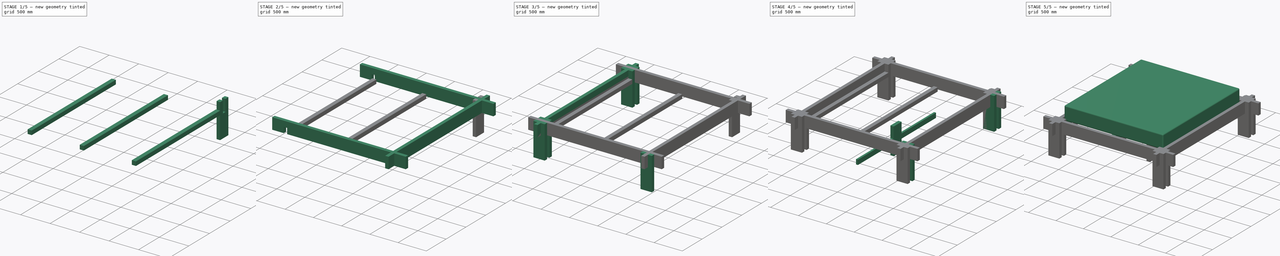
[diagram: build sequence overview — one tinted view per stage of 5, left to right]
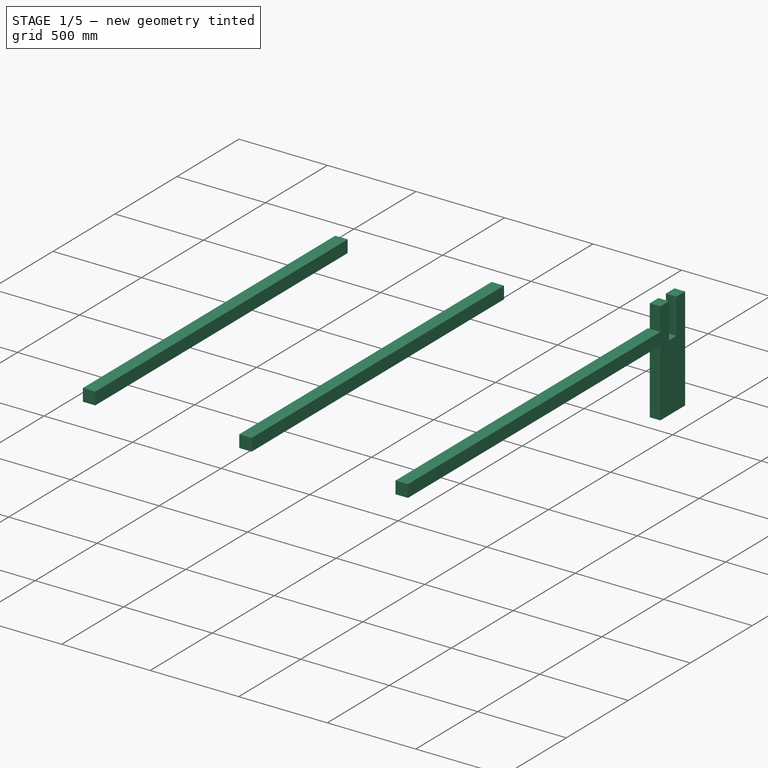
[diagram: stage 1 of 5 — iso view after this stage's code; geometry added in this stage tinted green]
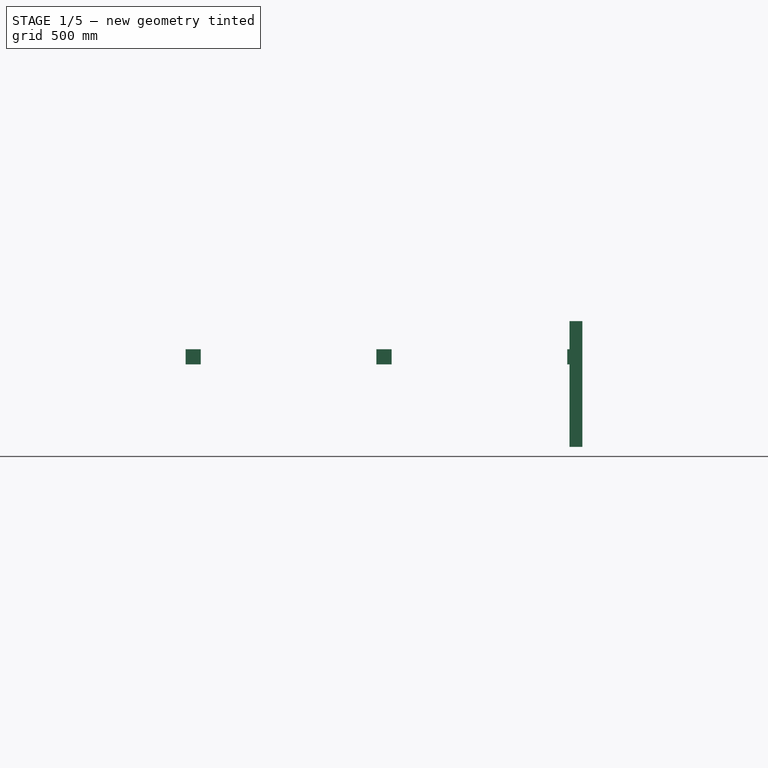
[diagram: stage 1 of 5 — front view after this stage's code; geometry added in this stage tinted green]
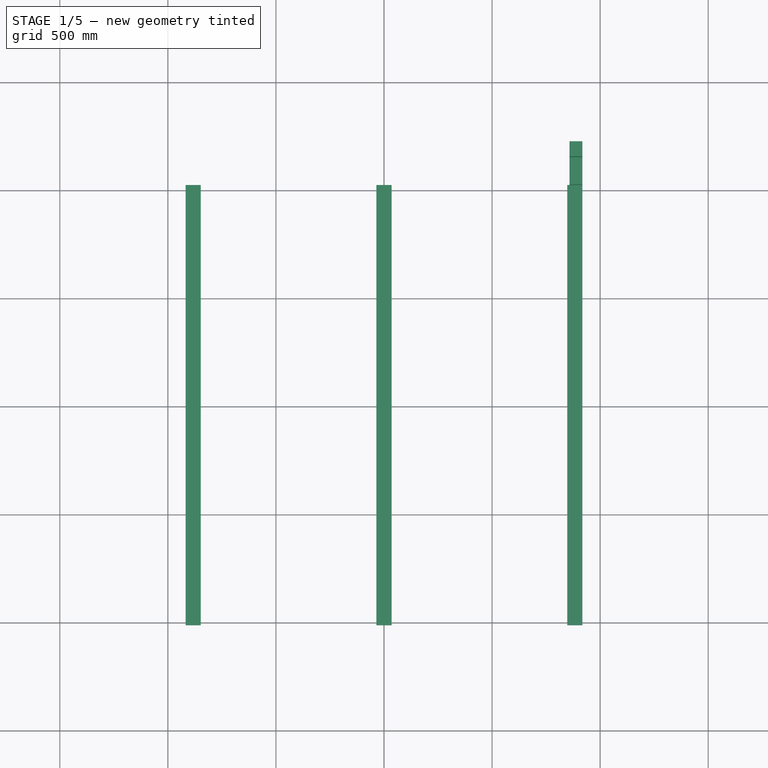
[diagram: stage 1 of 5 — top view after this stage's code; geometry added in this stage tinted green]
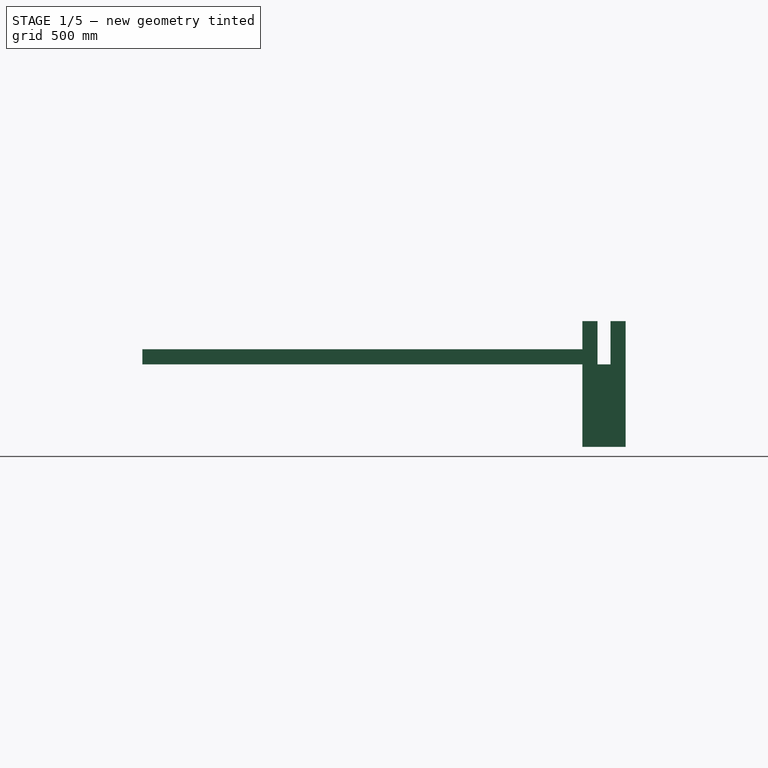
[diagram: stage 1 of 5 — right view after this stage's code; geometry added in this stage tinted green]
FCSTD DOCUMENT  (FreeCAD 0.17RUnknown)
Label: alpha
License: All rights reserved
LicenseURL: http://en.wikipedia.org/wiki/All_rights_reserved
objects: Drawing::FeatureViewPython×29, Part::FeaturePython×20, Drawing::FeatureViewPart×20, App::DocumentObjectGroup×9, Sketcher::SketchObject×6, PartDesign::Pad×6, Part::Box×1, PartDesign::Fillet×1, Spreadsheet::Sheet×1, Drawing::FeaturePage×1
note: 40 computed .brp shape members not serialized (recipe doc carries the construction recipe); baked Part::Feature solids carry a one-line shape summary decoded from their .brp

FEATURE [Sketcher::SketchObject] Sketch012  label="Framed Corner Pillar Format Outline"
  MapMode = 5
  Placement = pos=(0,0,0) rot=(0.57735,0.57735,0.57735;2.0944rad)
  expr: Placement.Base.z = 0
  expr: Constraints[8] = Dimensions.seat_height - Dimensions.surface_thickness
  expr: Constraints[23] = Dimensions.beam_height
  expr: Constraints[20] = Dimensions.beam_width
  expr: Constraints[7] = Dimensions.beam_height
  sketch-geometry (8):
    g0: LineSegment StartX=-100 StartY=291 StartZ=0 EndX=-100 EndY=-291 EndZ=0
    g1: LineSegment StartX=-100 StartY=-291 StartZ=0 EndX=100 EndY=-291 EndZ=0
    g2: LineSegment StartX=100 StartY=-291 StartZ=0 EndX=100 EndY=291 EndZ=0
    g3: LineSegment StartX=-30 StartY=291 StartZ=0 EndX=-100 EndY=291 EndZ=0
    g4: LineSegment StartX=-30 StartY=291 StartZ=0 EndX=-30 EndY=91 EndZ=0
    g5: LineSegment StartX=-30 StartY=91 StartZ=0 EndX=30 EndY=91 EndZ=0
    g6: LineSegment StartX=30 StartY=91 StartZ=0 EndX=30 EndY=291 EndZ=0
    g7: LineSegment StartX=30 StartY=291 StartZ=0 EndX=100 EndY=291 EndZ=0
  constraints (24):
    c: Vertical(g0)
    c: Coincident(g0,g1)
    c: Horizontal(g1)
    c: Coincident(g1,g2)
    c: Vertical(g2)
    c: Symmetric(g0,g1,g-2)
    c: Symmetric(g0,g0,g-1)
    c: DistanceX(g1,g1) = 200
    c: DistanceY(g2,g2) = 582
    c: Coincident(g3,g0)
    c: Horizontal(g3)
    c: Coincident(g4,g3)
    c: Vertical(g4)
    c: Coincident(g5,g4)
    c: Horizontal(g5)
    c: Coincident(g6,g5)
    c: Vertical(g6)
    c: Coincident(g7,g6)
    c: Coincident(g7,g2)
    c: Horizontal(g7)
    c: DistanceX(g5,g5) = 60
    c: Symmetric(g4,g5,g-2)
    c: Symmetric(g2,g1,g-1)
    c: DistanceY(g6,g6) = 200
FEATURE [PartDesign::Pad] Pad012  label="Framed Corner Pillar Format"
  Length = 60
  Length2 = 100
  Midplane = true
  Placement = pos=(0,0,0) rot=(0.57735,0.57735,0.57735;2.0944rad)
  Profile = -> Sketch012
  Type = 0
  expr: Length = Dimensions.loadbearer_width
FEATURE [App::DocumentObjectGroup] Group016  label="Tops"
  Group = -> [Clone041,Clone042]
FEATURE [App::DocumentObjectGroup] Group014  label="Flats"
  Group = -> [Group015,Group016]
FEATURE [Sketcher::SketchObject] Sketch  label="Slat Foundation Format"
  MapMode = 5
  Placement = pos=(0,0,0) rot=(1,0,0;1.5708rad)
  expr: Constraints[11] = Dimensions.slat_foundation_side
  sketch-geometry (4):
    g0: LineSegment StartX=-35 StartY=35 StartZ=0 EndX=35 EndY=35 EndZ=0
    g1: LineSegment StartX=35 StartY=35 StartZ=0 EndX=35 EndY=-35 EndZ=0
    g2: LineSegment StartX=35 StartY=-35 StartZ=0 EndX=-35 EndY=-35 EndZ=0
    g3: LineSegment StartX=-35 StartY=-35 StartZ=0 EndX=-35 EndY=35 EndZ=0
  constraints (12):
    c: Coincident(g0,g1)
    c: Coincident(g1,g2)
    c: Coincident(g2,g3)
    c: Coincident(g3,g0)
    c: Horizontal(g0)
    c: Horizontal(g2)
    c: Vertical(g1)
    c: Vertical(g3)
    c: Symmetric(g0,g0,g-2)
    c: Symmetric(g0,g2,g-1)
    c: Equal(g0,g3)
    c: DistanceX(g0,g0) = 70
FEATURE [PartDesign::Pad] Pad  label="Slat Foundation"
  Length = 2036
  Length2 = 100
  Midplane = true
  Placement = pos=(0,0,0) rot=(1,0,0;1.5708rad)
  Profile = -> Sketch
  Type = 0
  expr: Length = Dimensions.mattress_length + 2 * Dimensions.surface_thickness
FEATURE [App::DocumentObjectGroup] Group007  label="Prototypes"
  Group = -> [Pad006,Pad008,Pad012,Pad013,Pad014,Pad]
FEATURE [Part::FeaturePython] Clone  label="Right Slat Foundation"  # Draft clone (typed FeaturePython)
  Objects = -> [Pad]
  Placement = pos=(883,0,417) rot=(1,0,0;1.5708rad)
  Scale = (1,1,1)
  expr: Scale.y = 1
  expr: Placement.Base.z = Dimensions.slat_foundation_side / 2 + Dimensions.seat_height - Dimensions.surface_thickness - Dimensions.beam_height
  expr: Placement.Base.x = Dimensions.mattress_width / 2 - Dimensions.slat_foundation_side / 2 + Dimensions.surface_thickness
FEATURE [Part::FeaturePython] Clone043  label="Left Slat Foundation"  # Draft clone (typed FeaturePython)
  Objects = -> [Pad]
  Placement = pos=(-883,0,417) rot=(1,0,0;1.5708rad)
  Scale = (1,1,1)
  expr: Scale.y = 1
  expr: Placement.Base.x = -1 * (Dimensions.mattress_width / 2 - Dimensions.slat_foundation_side / 2 + Dimensions.surface_thickness)
  expr: Placement.Base.z = Dimensions.slat_foundation_side / 2 + Dimensions.seat_height - Dimensions.surface_thickness - Dimensions.beam_height
FEATURE [Part::FeaturePython] Clone044  label="Center Slat Foundation"  # Draft clone (typed FeaturePython)
  Objects = -> [Pad]
  Placement = pos=(0,0,417) rot=(1,0,0;1.5708rad)
  Scale = (1,1,1)
  expr: Placement.Base.z = Dimensions.slat_foundation_side / 2 + Dimensions.seat_height - Dimensions.surface_thickness - Dimensions.beam_height
  expr: Scale.y = 1
FEATURE [App::DocumentObjectGroup] Group017  label="Slat Foundations"
  Group = -> [Clone,Clone043,Clone044]
FEATURE [App::DocumentObjectGroup] Group011  label="Bed"
  Group = -> [Group013,Group014,Group017]
FEATURE [Part::FeaturePython] Clone045  label="Front Right Outer"  # Draft clone (typed FeaturePython)
  Objects = -> [Pad012]
  Placement = pos=(888,1118,291) rot=(0.57735,0.57735,0.57735;2.0944rad)
  Scale = (1,1,1)
  expr: Placement.Base.x = Dimensions.mattress_width / 2 - Dimensions.beam_width / 2 + Dimensions.surface_thickness
  expr: Placement.Base.y = 1 * (Dimensions.mattress_length / 2 + Dimensions.surface_thickness + Dimensions.beam_height / 2 + 0 * Dimensions.beam_width)
  expr: Placement.Base.z = (Dimensions.seat_height - Dimensions.surface_thickness) / 2
FEATURE [Drawing::FeatureViewPart] Ortho  label="Ortho_0_0"
  Direction = (1,0,0)
  HiddenWidth = 0.15
  LineWidth = 0.35
  Rotation = -90
  Scale = 0.05
  ShowHiddenLines = false
  ShowSmoothLines = false
  Source = -> Pad008
  Tolerance = 0.05
  ViewResult = <g id="Ortho_0_0"\n   transform="rotate(-90,375,50) translate(375,50) scale(0.05,0.05)"\n  >\n<g   stroke="rgb(0, 0, 0)"\n   stroke-width="7"\n   stroke-linecap="butt"\n   stroke-linejoin="miter"\n   fill="none"\n   transform="scale(1,-1)"\n  >\n<path id= "1" d=" M 241 -100 L 241 100 " />\n<path id= "2" d=" M -241 -100 L -241 100 " />\n<path id= "3" d=" M 241 -100 L -241 -100 " />\n<path id= "4" d=" M 241 100 L -241 100 " />\n</g>\n</g>
  Visible = true
  X = 375
  Y = 50
FEATURE [Drawing::FeatureViewPart] Ortho001  label="Ortho_1_0"
  Direction = (0,1,0)
  HiddenWidth = 0.15
  LineWidth = 0.35
  Rotation = -90
  Scale = 0.05
  ShowHiddenLines = false
  ShowSmoothLines = false
  Source = -> Pad008
  Tolerance = 0.05
  ViewResult = <g id="Ortho_1_0"\n   transform="rotate(-90,390,50) translate(390,50) scale(0.05,0.05)"\n  >\n<g   stroke="rgb(0, 0, 0)"\n   stroke-width="7"\n   stroke-linecap="butt"\n   stroke-linejoin="miter"\n   fill="none"\n   transform="scale(1,-1)"\n  >\n<path id= "1" d=" M 241 -30 L 241 30 " />\n<path id= "2" d=" M 241 30 L -241 30 " />\n<path id= "3" d=" M -241 30 L -241 -30 " />\n<path id= "4" d=" M -241 -30 L 241 -30 " />\n</g>\n</g>
  Visible = true
  X = 390
  Y = 50
FEATURE [Drawing::FeatureViewPart] Ortho002  label="Ortho_0_1"
  Direction = (0,0,1)
  HiddenWidth = 0.15
  LineWidth = 0.35
  Rotation = 90
  Scale = 0.05
  ShowHiddenLines = false
  ShowSmoothLines = false
  Source = -> Pad008
  Tolerance = 0.05
  ViewResult = <g id="Ortho_0_1"\n   transform="rotate(90,375,30) translate(375,30) scale(0.05,0.05)"\n  >\n<g   stroke="rgb(0, 0, 0)"\n   stroke-width="7"\n   stroke-linecap="butt"\n   stroke-linejoin="miter"\n   fill="none"\n   transform="scale(1,-1)"\n  >\n<path id= "1" d=" M -30 100 L -30 -100 " />\n<path id= "2" d=" M 30 100 L 30 -100 " />\n<path id= "3" d=" M -30 100 L 30 100 " />\n<path id= "4" d=" M -30 -100 L 30 -100 " />\n</g>\n</g>
  Visible = true
  X = 375
  Y = 30
FEATURE [Drawing::FeatureViewPart] Ortho003  label="Ortho_-1_1"
  Direction = (0.57735,-0.57735,0.57735)
  HiddenWidth = 0.15
  LineWidth = 0.35
  Rotation = 60
  Scale = 0.05
  ShowHiddenLines = false
  ShowSmoothLines = false
  Source = -> Pad008
  Tolerance = 0.05
  ViewResult = <g id="Ortho_-1_1"\n   transform="rotate(60,360,30) translate(360,30) scale(0.05,0.05)"\n  >\n<g   stroke="rgb(0, 0, 0)"\n   stroke-width="7"\n   stroke-linecap="butt"\n   stroke-linejoin="miter"\n   fill="none"\n   transform="scale(1,-1)"\n  >\n<path id= "1" d=" M -191.626 167.79 L -191.626 4.49073 " />\n<path id= "2" d=" M -149.2 192.285 L -149.2 28.9856 " />\n<path id= "3" d=" M -191.626 167.79 L -149.2 192.285 " />\n<path id= "4" d=" M -191.626 4.49073 L -149.2 28.9856 " />\n<path id= "5" d=" M 191.626 -4.49073 L 191.626 -167.79 " />\n<path id= "6" d=" M -149.2 192.285 L 191.626 -4.49073 " />\n<path id= "7" d=" M -149.2 28.9856 L 191.626 -167.79 " />\n<path id= "8" d=" M 191.626 -167.79 L 149.2 -192.285 " />\n<path id= "9" d=" M 149.2 -192.285 L -191.626 4.49073 " />\n</g>\n</g>
  Visible = true
  X = 360
  Y = 30
FEATURE [Drawing::FeatureViewPart] Ortho004  label="Ortho_0_002"
  Direction = (1,0,0)
  HiddenWidth = 0.15
  LineWidth = 0.35
  Rotation = -90
  Scale = 0.05
  ShowHiddenLines = false
  ShowSmoothLines = false
  Source = -> Pad012
  Tolerance = 0.05
  ViewResult = <g id="Ortho_0_002"\n   transform="rotate(-90,315,52.5) translate(315,52.5) scale(0.05,0.05)"\n  >\n<g   stroke="rgb(0, 0, 0)"\n   stroke-width="7"\n   stroke-linecap="butt"\n   stroke-linejoin="miter"\n   fill="none"\n   transform="scale(1,-1)"\n  >\n<path id= "1" d=" M 291 100 L -291 100 " />\n<path id= "2" d=" M -291 100 L -291 -100 " />\n<path id= "3" d=" M -291 -100 L 291 -100 " />\n<path id= "4" d=" M 291 -30 L 291 -100 " />\n<path id= "5" d=" M 91 -30 L 291 -30 " />\n<path id= "6" d=" M 91 30 L 91 -30 " />\n<path id= "7" d=" M 291 30 L 91 30 " />\n<path id= "8" d=" M 291 30 L 291 100 " />\n</g>\n</g>
  Visible = true
  X = 315
  Y = 52.5
FEATURE [Drawing::FeatureViewPart] Ortho005  label="Ortho_0_003"
  Direction = (0,0,1)
  HiddenWidth = 0.15
  LineWidth = 0.35
  Rotation = 90
  Scale = 0.05
  ShowHiddenLines = false
  ShowSmoothLines = false
  Source = -> Pad012
  Tolerance = 0.05
  ViewResult = <g id="Ortho_0_003"\n   transform="rotate(90,315,30) translate(315,30) scale(0.05,0.05)"\n  >\n<g   stroke="rgb(0, 0, 0)"\n   stroke-width="7"\n   stroke-linecap="butt"\n   stroke-linejoin="miter"\n   fill="none"\n   transform="scale(1,-1)"\n  >\n<path id= "1" d=" M -30 -100 L 30 -100 " />\n<path id= "2" d=" M -30 100 L 30 100 " />\n<path id= "3" d=" M -30 30 L 30 30 " />\n<path id= "4" d=" M -30 30 L -30 100 " />\n<path id= "5" d=" M 30 30 L 30 100 " />\n<path id= "6" d=" M -30 30 L 30 30 " />\n<path id= "7" d=" M -30 -30 L -30 30 " />\n<path id= "8" d=" M 30 -30 L 30 30 " />\n<path id= "9" d=" M -30 -30 L 30 -30 " />\n<path id= "10" d=" M -30 -30 L -30 -100 " />\n<path id= "11" d=" M 30 -30 L 30 -100 " />\n</g>\n</g>
  Visible = true
  X = 315
  Y = 30
FEATURE [Drawing::FeatureViewPart] Ortho006  label="Ortho_1_001"
  Direction = (0,1,0)
  HiddenWidth = 0.15
  LineWidth = 0.35
  Rotation = -90
  Scale = 0.05
  ShowHiddenLines = false
  ShowSmoothLines = false
  Source = -> Pad012
  Tolerance = 0.05
  ViewResult = <g id="Ortho_1_001"\n   transform="rotate(-90,330,52.5) translate(330,52.5) scale(0.05,0.05)"\n  >\n<g   stroke="rgb(0, 0, 0)"\n   stroke-width="7"\n   stroke-linecap="butt"\n   stroke-linejoin="miter"\n   fill="none"\n   transform="scale(1,-1)"\n  >\n<path id= "1" d=" M -291 -30 L -291 30 " />\n<path id= "2" d=" M 291 -30 L 291 30 " />\n<path id= "3" d=" M -291 -30 L 291 -30 " />\n<path id= "4" d=" M -291 30 L 291 30 " />\n<path id= "5" d=" M 291 -30 L 291 30 " />\n<path id= "6" d=" M 291 -30 L 91 -30 " />\n</g>\n</g>
  Visible = true
  X = 330
  Y = 52.5
FEATURE [Drawing::FeatureViewPart] Ortho007  label="Ortho_-1_002"
  Direction = (0.57735,-0.57735,0.57735)
  HiddenWidth = 0.15
  LineWidth = 0.35
  Rotation = 60
  Scale = 0.05
  ShowHiddenLines = false
  ShowSmoothLines = false
  Source = -> Pad012
  Tolerance = 0.05
  ViewResult = <g id="Ortho_-1_002"\n   transform="rotate(60,300,30) translate(300,30) scale(0.05,0.05)"\n  >\n<g   stroke="rgb(0, 0, 0)"\n   stroke-width="7"\n   stroke-linecap="butt"\n   stroke-linejoin="miter"\n   fill="none"\n   transform="scale(1,-1)"\n  >\n<path id= "1" d=" M -226.981 24.9031 L -184.555 49.398 " />\n<path id= "2" d=" M 184.555 -212.697 L 226.981 -188.202 " />\n<path id= "3" d=" M -226.981 24.9031 L 184.555 -212.697 " />\n<path id= "4" d=" M -184.555 49.398 L 226.981 -188.202 " />\n<path id= "5" d=" M 226.981 -188.202 L 226.981 -24.9031 " />\n<path id= "6" d=" M -226.981 188.202 L -184.555 212.697 " />\n<path id= "7" d=" M 226.981 -24.9031 L -184.555 212.697 " />\n<path id= "8" d=" M -226.981 131.048 L -184.555 155.543 " />\n<path id= "9" d=" M -226.981 131.048 L -226.981 188.202 " />\n<path id= "10" d=" M -184.555 155.543 L -184.555 212.697 " />\n<path id= "11" d=" M -85.5599 49.398 L -43.1335 73.8929 " />\n<path id= "12" d=" M -184.555 106.553 L -226.981 131.048 " />\n<path id= "13" d=" M -43.1335 73.8929 L -184.555 155.543 " />\n<path id= "14" d=" M -43.1335 24.9031 L -43.1335 73.8929 " />\n<path id= "15" d=" M -226.981 82.0579 L -184.555 106.553 " />\n<path id= "16" d=" M -184.555 106.553 L -43.1335 24.9031 " />\n<path id= "17" d=" M -226.981 82.0579 L -226.981 24.9031 " />\n<path id= "18" d=" M -184.555 106.553 L -184.555 49.398 " />\n</g>\n</g>
  Visible = true
  X = 300
  Y = 30
FEATURE [Drawing::FeatureViewPart] Ortho008  label="Ortho_0_004"
  Direction = (1,0,0)
  HiddenWidth = 0.15
  LineWidth = 0.35
  Rotation = -90
  Scale = 0.05
  ShowHiddenLines = false
  ShowSmoothLines = false
  Source = -> Pad013
  Tolerance = 0.05
  ViewResult = <g id="Ortho_0_004"\n   transform="rotate(-90,300,115) translate(300,115) scale(0.05,0.05)"\n  >\n<g   stroke="rgb(0, 0, 0)"\n   stroke-width="7"\n   stroke-linecap="butt"\n   stroke-linejoin="miter"\n   fill="none"\n   transform="scale(1,-1)"\n  >\n<path id= "1" d=" M -100 1282 L -100 -1282 " />\n<path id= "2" d=" M -100 -1282 L 100 -1282 " />\n<path id= "3" d=" M 100 -1282 L 100 -1138 " />\n<path id= "4" d=" M 3.33067e-15 -1138 L 100 -1138 " />\n<path id= "5" d=" M 3.33067e-15 -1138 L 3.33067e-15 -1078 " />\n<path id= "6" d=" M 3.33067e-15 -1078 L 100 -1078 " />\n<path id= "7" d=" M 100 -1078 L 100 1078 " />\n<path id= "8" d=" M 100 1078 L -1.42109e-14 1078 " />\n<path id= "9" d=" M 3.33067e-15 1078 L 3.33067e-15 1138 " />\n<path id= "10" d=" M 3.33067e-15 1138 L 100 1138 " />\n<path id= "11" d=" M 100 1138 L 100 1282 " />\n<path id= "12" d=" M 100 1282 L -100 1282 " />\n</g>\n</g>
  Visible = true
  X = 300
  Y = 115
FEATURE [Drawing::FeatureViewPart] Ortho009  label="Ortho_0_005"
  Direction = (0,0,1)
  HiddenWidth = 0.15
  LineWidth = 0.35
  Rotation = 90
  Scale = 0.05
  ShowHiddenLines = false
  ShowSmoothLines = false
  Source = -> Pad013
  Tolerance = 0.05
  ViewResult = <g id="Ortho_0_005"\n   transform="rotate(90,300,100) translate(300,100) scale(0.05,0.05)"\n  >\n<g   stroke="rgb(0, 0, 0)"\n   stroke-width="7"\n   stroke-linecap="butt"\n   stroke-linejoin="miter"\n   fill="none"\n   transform="scale(1,-1)"\n  >\n<path id= "1" d=" M -30 1282 L 30 1282 " />\n<path id= "2" d=" M -30 1138 L 30 1138 " />\n<path id= "3" d=" M -30 1282 L -30 1138 " />\n<path id= "4" d=" M 30 1282 L 30 1138 " />\n<path id= "5" d=" M -30 1138 L 30 1138 " />\n<path id= "6" d=" M -30 1138 L -30 1078 " />\n<path id= "7" d=" M 30 1138 L 30 1078 " />\n<path id= "8" d=" M -30 1078 L 30 1078 " />\n<path id= "9" d=" M -30 -1078 L 30 -1078 " />\n<path id= "10" d=" M -30 1078 L -30 -1078 " />\n<path id= "11" d=" M 30 1078 L 30 -1078 " />\n<path id= "12" d=" M -30 -1078 L 30 -1078 " />\n<path id= "13" d=" M -30 -1078 L -30 -1138 " />\n<path id= "14" d=" M 30 -1078 L 30 -1138 " />\n<path id= "15" d=" M -30 -1138 L 30 -1138 " />\n<path id= "16" d=" M -30 -1282 L 30 -1282 " />\n<path id= "17" d=" M -30 -1138 L -30 -1282 " />\n<path id= "18" d=" M 30 -1138 L 30 -1282 " />\n</g>\n</g>
  Visible = true
  X = 300
  Y = 100
FEATURE [Drawing::FeatureViewPart] Ortho010  label="Ortho_1_002"
  Direction = (0,1,0)
  HiddenWidth = 0.15
  LineWidth = 0.35
  Rotation = -90
  Scale = 0.05
  ShowHiddenLines = false
  ShowSmoothLines = false
  Source = -> Pad013
  Tolerance = 0.05
  ViewResult = <g id="Ortho_1_002"\n   transform="rotate(-90,390,115) translate(390,115) scale(0.05,0.05)"\n  >\n<g   stroke="rgb(0, 0, 0)"\n   stroke-width="7"\n   stroke-linecap="butt"\n   stroke-linejoin="miter"\n   fill="none"\n   transform="scale(1,-1)"\n  >\n<path id= "1" d=" M -100 -30 L -100 30 " />\n<path id= "2" d=" M 100 -30 L 100 30 " />\n<path id= "3" d=" M -100 -30 L 100 -30 " />\n<path id= "4" d=" M -100 30 L 100 30 " />\n<path id= "5" d=" M 100 -30 L 100 30 " />\n<path id= "6" d=" M 3.33067e-15 30 L 100 30 " />\n<path id= "7" d=" M 100 -30 L 100 30 " />\n<path id= "8" d=" M -3.33067e-15 -30 L 100 -30 " />\n</g>\n</g>
  Visible = true
  X = 390
  Y = 115
FEATURE [Drawing::FeatureViewPart] Ortho011  label="Ortho_-1_003"
  Direction = (0.57735,-0.57735,0.57735)
  HiddenWidth = 0.15
  LineWidth = 0.35
  Rotation = 60
  Scale = 0.05
  ShowHiddenLines = false
  ShowSmoothLines = false
  Source = -> Pad013
  Tolerance = 0.05
  ViewResult = <g id="Ortho_-1_003"\n   transform="rotate(60,210,100) translate(210,100) scale(0.05,0.05)"\n  >\n<g   stroke="rgb(0, 0, 0)"\n   stroke-width="7"\n   stroke-linecap="butt"\n   stroke-linejoin="miter"\n   fill="none"\n   transform="scale(1,-1)"\n  >\n<path id= "1" d=" M 49.4975 -1099.82 L 91.9239 -1075.33 " />\n<path id= "2" d=" M 91.9239 -1075.33 L 91.9239 1018.17 " />\n<path id= "3" d=" M -91.9239 1075.33 L -49.4975 1099.82 " />\n<path id= "4" d=" M 91.9239 1018.17 L -49.4975 1099.82 " />\n<path id= "5" d=" M -91.9239 957.75 L -49.4975 982.245 " />\n<path id= "6" d=" M -91.9239 1075.33 L -91.9239 957.75 " />\n<path id= "7" d=" M -49.4975 1099.82 L -49.4975 982.245 " />\n<path id= "8" d=" M -21.2132 916.926 L 21.2132 941.421 " />\n<path id= "9" d=" M -49.4975 933.256 L -91.9239 957.75 " />\n<path id= "10" d=" M 21.2132 941.421 L -49.4975 982.245 " />\n<path id= "11" d=" M 21.2132 941.421 L 21.2132 892.431 " />\n<path id= "12" d=" M -91.9239 908.761 L -49.4975 933.256 " />\n<path id= "13" d=" M 21.2132 892.431 L -49.4975 933.256 " />\n<path id= "14" d=" M -91.9239 -851.606 L -49.4975 -827.111 " />\n<path id= "15" d=" M -91.9239 908.761 L -91.9239 -851.606 " />\n<path id= "16" d=" M -49.4975 933.256 L -49.4975 -827.111 " />\n<path id= "17" d=" M -21.2132 -892.431 L 21.2132 -867.936 " />\n<path id= "18" d=" M -91.9239 -851.606 L -49.4975 -876.101 " />\n<path id= "19" d=" M -49.4975 -827.111 L 21.2132 -867.936 " />\n<path id= "20" d=" M 21.2132 -867.936 L 21.2132 -916.926 " />\n<path id= "21" d=" M -91.9239 -900.596 L -49.4975 -876.101 " />\n<path id= "22" d=" M 21.2132 -916.926 L -49.4975 -876.101 " />\n<path id= "23" d=" M -91.9239 -1018.17 L -49.4975 -993.676 " />\n<path id= "24" d=" M -91.9239 -900.596 L -91.9239 -1018.17 " />\n<path id= "25" d=" M -49.4975 -876.101 L -49.4975 -993.676 " />\n<path id= "26" d=" M -91.9239 -1018.17 L 49.4975 -1099.82 " />\n<path id= "27" d=" M -49.4975 -993.676 L 91.9239 -1075.33 " />\n</g>\n</g>
  Visible = true
  X = 210
  Y = 100
FEATURE [Drawing::FeatureViewPart] Ortho012  label="Ortho_0_006"
  Direction = (1,0,0)
  HiddenWidth = 0.15
  LineWidth = 0.35
  Rotation = -90
  Scale = 0.05
  ShowHiddenLines = false
  ShowSmoothLines = false
  Source = -> Pad014
  Tolerance = 0.05
  ViewResult = <g id="Ortho_0_006"\n   transform="rotate(-90,30,270) translate(30,270) scale(0.05,0.05)"\n  >\n<g   stroke="rgb(0, 0, 0)"\n   stroke-width="7"\n   stroke-linecap="butt"\n   stroke-linejoin="miter"\n   fill="none"\n   transform="scale(1,-1)"\n  >\n<path id= "1" d=" M 100 -30 L 100 30 " />\n<path id= "2" d=" M -100 -30 L -100 30 " />\n<path id= "3" d=" M 100 -30 L -100 -30 " />\n<path id= "4" d=" M 100 30 L -100 30 " />\n<path id= "5" d=" M -1.33227e-14 -30 L -100 -30 " />\n</g>\n</g>
  Visible = true
  X = 30
  Y = 270
FEATURE [Drawing::FeatureViewPart] Ortho013  label="Ortho_0_007"
  Direction = (0,0,1)
  HiddenWidth = 0.15
  LineWidth = 0.35
  Rotation = 90
  Scale = 0.05
  ShowHiddenLines = false
  ShowSmoothLines = false
  Source = -> Pad014
  Tolerance = 0.05
  ViewResult = <g id="Ortho_0_007"\n   transform="rotate(90,30,200) translate(30,200) scale(0.05,0.05)"\n  >\n<g   stroke="rgb(0, 0, 0)"\n   stroke-width="7"\n   stroke-linecap="butt"\n   stroke-linejoin="miter"\n   fill="none"\n   transform="scale(1,-1)"\n  >\n<path id= "1" d=" M -1182 30 L -1182 -30 " />\n<path id= "2" d=" M 1182 30 L 1182 -30 " />\n<path id= "3" d=" M -1182 30 L 1182 30 " />\n<path id= "4" d=" M -1182 -30 L 1182 -30 " />\n</g>\n</g>
  Visible = true
  X = 30
  Y = 200
FEATURE [Drawing::FeatureViewPart] Ortho014  label="Ortho_1_003"
  Direction = (0,1,0)
  HiddenWidth = 0.15
  LineWidth = 0.35
  Rotation = -90
  Scale = 0.05
  ShowHiddenLines = false
  ShowSmoothLines = false
  Source = -> Pad014
  Tolerance = 0.05
  ViewResult = <g id="Ortho_1_003"\n   transform="rotate(-90,100,270) translate(100,270) scale(0.05,0.05)"\n  >\n<g   stroke="rgb(0, 0, 0)"\n   stroke-width="7"\n   stroke-linecap="butt"\n   stroke-linejoin="miter"\n   fill="none"\n   transform="scale(1,-1)"\n  >\n<path id= "1" d=" M 100 -1182 L 100 1182 " />\n<path id= "2" d=" M 100 1182 L -100 1182 " />\n<path id= "3" d=" M -100 1182 L -100 978 " />\n<path id= "4" d=" M -100 978 L 1.42109e-14 978 " />\n<path id= "5" d=" M -1.33227e-14 978 L -1.33227e-14 918 " />\n<path id= "6" d=" M -1.33227e-14 918 L -100 918 " />\n<path id= "7" d=" M -100 918 L -100 -918 " />\n<path id= "8" d=" M -100 -918 L 1.42109e-14 -918 " />\n<path id= "9" d=" M -1.33227e-14 -918 L -1.33227e-14 -978 " />\n<path id= "10" d=" M -1.33227e-14 -978 L -100 -978 " />\n<path id= "11" d=" M -100 -978 L -100 -1182 " />\n<path id= "12" d=" M -100 -1182 L 100 -1182 " />\n</g>\n</g>
  Visible = true
  X = 100
  Y = 270
FEATURE [Drawing::FeatureViewPart] Ortho015  label="Ortho_1_1"
  Direction = (0.57735,0.57735,0.57735)
  HiddenWidth = 0.15
  LineWidth = 0.35
  Rotation = 120
  Scale = 0.05
  ShowHiddenLines = false
  ShowSmoothLines = false
  Source = -> Pad014
  Tolerance = 0.05
  ViewResult = <g id="Ortho_1_1"\n   transform="rotate(120,100,200) translate(100,200) scale(0.05,0.05)"\n  >\n<g   stroke="rgb(0, 0, 0)"\n   stroke-width="7"\n   stroke-linecap="butt"\n   stroke-linejoin="miter"\n   fill="none"\n   transform="scale(1,-1)"\n  >\n<path id= "1" d=" M -906.511 466.22 L -906.511 417.23 " />\n<path id= "2" d=" M 765.09 -498.879 L 765.09 -547.869 " />\n<path id= "3" d=" M -906.511 466.22 L 765.09 -498.879 " />\n<path id= "4" d=" M -906.511 417.23 L 765.09 -547.869 " />\n<path id= "5" d=" M 906.511 -417.23 L 906.511 -466.22 " />\n<path id= "6" d=" M 765.09 -498.879 L 906.511 -417.23 " />\n<path id= "7" d=" M 765.09 -547.869 L 906.511 -466.22 " />\n<path id= "8" d=" M 906.511 -417.23 L 762.261 -333.947 " />\n<path id= "9" d=" M 762.261 -333.947 L 691.55 -374.772 " />\n<path id= "10" d=" M 691.55 -374.772 L 649.124 -350.277 " />\n<path id= "11" d=" M 719.835 -309.452 L 719.835 -358.442 " />\n<path id= "12" d=" M 649.124 -350.277 L 719.835 -309.452 " />\n<path id= "13" d=" M 691.55 -374.772 L 719.835 -358.442 " />\n<path id= "14" d=" M 719.835 -309.452 L -578.413 440.092 " />\n<path id= "15" d=" M -578.413 440.092 L -649.124 399.267 " />\n<path id= "16" d=" M -649.124 399.267 L -691.55 423.762 " />\n<path id= "17" d=" M -620.84 464.587 L -620.84 415.597 " />\n<path id= "18" d=" M -691.55 423.762 L -620.84 464.587 " />\n<path id= "19" d=" M -649.124 399.267 L -620.84 415.597 " />\n<path id= "20" d=" M -620.84 464.587 L -765.09 547.869 " />\n<path id= "21" d=" M -765.09 547.869 L -906.511 466.22 " />\n</g>\n</g>
  Visible = true
  X = 100
  Y = 200
FEATURE [Drawing::FeatureViewPart] Ortho016  label="Ortho_0_008"
  Direction = (1,0,0)
  HiddenWidth = 0.15
  LineWidth = 0.35
  Rotation = -90
  Scale = 0.05
  ShowHiddenLines = false
  ShowSmoothLines = false
  Source = -> Pad
  Tolerance = 0.05
  ViewResult = <g id="Ortho_0_008"\n   transform="rotate(-90,320,190) translate(320,190) scale(0.05,0.05)"\n  >\n<g   stroke="rgb(0, 0, 0)"\n   stroke-width="7"\n   stroke-linecap="butt"\n   stroke-linejoin="miter"\n   fill="none"\n   transform="scale(1,-1)"\n  >\n<path id= "1" d=" M 35 -1018 L 35 1018 " />\n<path id= "2" d=" M -35 -1018 L -35 1018 " />\n<path id= "3" d=" M 35 -1018 L -35 -1018 " />\n<path id= "4" d=" M 35 1018 L -35 1018 " />\n</g>\n</g>
  Visible = true
  X = 320
  Y = 190
FEATURE [Drawing::FeatureViewPart] Ortho017  label="Ortho_0_009"
  Direction = (0,0,1)
  HiddenWidth = 0.15
  LineWidth = 0.35
  Rotation = 90
  Scale = 0.05
  ShowHiddenLines = false
  ShowSmoothLines = false
  Source = -> Pad
  Tolerance = 0.05
  ViewResult = <g id="Ortho_0_009"\n   transform="rotate(90,320,180) translate(320,180) scale(0.05,0.05)"\n  >\n<g   stroke="rgb(0, 0, 0)"\n   stroke-width="7"\n   stroke-linecap="butt"\n   stroke-linejoin="miter"\n   fill="none"\n   transform="scale(1,-1)"\n  >\n<path id= "1" d=" M -35 1018 L -35 -1018 " />\n<path id= "2" d=" M 35 1018 L 35 -1018 " />\n<path id= "3" d=" M -35 1018 L 35 1018 " />\n<path id= "4" d=" M -35 -1018 L 35 -1018 " />\n</g>\n</g>
  Visible = true
  X = 320
  Y = 180
FEATURE [Drawing::FeatureViewPart] Ortho018  label="Ortho_-1_004"
  Direction = (0.57735,-0.57735,0.57735)
  HiddenWidth = 0.15
  LineWidth = 0.35
  Rotation = 60
  Scale = 0.05
  ShowHiddenLines = false
  ShowSmoothLines = false
  Source = -> Pad
  Tolerance = 0.05
  ViewResult = <g id="Ortho_-1_004"\n   transform="rotate(60,250,180) translate(250,180) scale(0.05,0.05)"\n  >\n<g   stroke="rgb(0, 0, 0)"\n   stroke-width="7"\n   stroke-linecap="butt"\n   stroke-linejoin="miter"\n   fill="none"\n   transform="scale(1,-1)"\n  >\n<path id= "1" d=" M -49.4975 831.194 L -49.4975 -831.194 " />\n<path id= "2" d=" M 3.19744e-13 859.771 L -3.19597e-13 -802.616 " />\n<path id= "3" d=" M -49.4975 831.194 L 3.41061e-13 859.771 " />\n<path id= "4" d=" M -49.4975 -831.194 L -3.05533e-13 -802.616 " />\n<path id= "5" d=" M 49.4975 831.194 L 49.4975 -831.194 " />\n<path id= "6" d=" M 3.23297e-13 859.771 L 49.4975 831.194 " />\n<path id= "7" d=" M -3.19744e-13 -802.616 L 49.4975 -831.194 " />\n<path id= "8" d=" M 49.4975 -831.194 L -3.41061e-13 -859.771 " />\n<path id= "9" d=" M -3.23297e-13 -859.771 L -49.4975 -831.194 " />\n</g>\n</g>
  Visible = true
  X = 250
  Y = 180
FEATURE [Drawing::FeatureViewPart] Ortho020  label="Ortho_1_004"
  Direction = (0,1,0)
  HiddenWidth = 0.15
  LineWidth = 0.35
  Rotation = -90
  Scale = 0.05
  ShowHiddenLines = false
  ShowSmoothLines = false
  Source = -> Pad
  Tolerance = 0.05
  ViewResult = <g id="Ortho_1_004"\n   transform="rotate(-90,390,190) translate(390,190) scale(0.05,0.05)"\n  >\n<g   stroke="rgb(0, 0, 0)"\n   stroke-width="7"\n   stroke-linecap="butt"\n   stroke-linejoin="miter"\n   fill="none"\n   transform="scale(1,-1)"\n  >\n<path id= "1" d=" M 35 -35 L 35 35 " />\n<path id= "2" d=" M 35 35 L -35 35 " />\n<path id= "3" d=" M -35 35 L -35 -35 " />\n<path id= "4" d=" M -35 -35 L 35 -35 " />\n</g>\n</g>
  Visible = true
  X = 390
  Y = 190
FEATURE [Drawing::FeatureViewPython] dim001  # drawing view (typed FeaturePython)
  Rotation = 0
  ViewResult = <g> \n  <line x1="159.100000" y1="263.000000" x2="159.100000" y2="257.916726" style="stroke:rgb(0,0,255);stroke-width:0.50" />\n<line x1="40.900000" y1="263.000000" x2="40.900000" y2="257.916726" style="stroke:rgb(0,0,255);stroke-width:0.50" />\n<line x1="159.100000" y1="258.916726" x2="40.900000" y2="258.916726" style="stroke:rgb(0,0,255);stroke-width:0.50" /> \n  <polygon points="40.900000,258.916726 43.900000,259.916726 44.900000,258.916726 43.900000,257.916726" style="fill:rgb(0,0,255);stroke:rgb(0,0,255);stroke-width:0" /><polygon points="159.100000,258.916726 156.100000,257.916726 155.100000,258.916726 156.100000,259.916726" style="fill:rgb(0,0,255);stroke:rgb(0,0,255);stroke-width:0" /> \n  <text x="100.000000" y="256.916726" font-family="inherit" font-size="3.6" fill="rgb(0,0,255)" text-anchor="middle" transform="rotate(0.000000 100.000000,256.916726)" >2364</text> </g>
  Visible = true
  X = 0
  Y = 0
  arrowL1 = 3
  arrowL2 = 1
  arrowW = 2
  arrow_scheme = 0
  autoPlaceOffset = 2
  autoPlaceText = true
  click1_x = 57.5371
  click1_y = 258.917
  click2_x = 57.5371
  click2_y = 258.917
  comma_decimal_place = false
  dimension_line_overshoot = 1
  gap_datum_points = 2
  halfDimension_linear = false
  lineColor = rgb(0,0,255)
  strokeWidth = 0.5
  textFormat_linear = %(value)3.3f
  textRenderer_color = rgb(0,0,255)
  textRenderer_family = inherit
  textRenderer_size = 3.6
  unit_custom_scale = 1
  unit_scheme = 0
FEATURE [Drawing::FeatureViewPython] dim002  # drawing view (typed FeaturePython)
  Rotation = 0
  ViewResult = <g> \n  <line x1="161.100000" y1="275.000000" x2="167.152910" y2="275.000000" style="stroke:rgb(0,0,255);stroke-width:0.50" />\n<line x1="161.100000" y1="265.000000" x2="167.152910" y2="265.000000" style="stroke:rgb(0,0,255);stroke-width:0.50" />\n<line x1="166.152910" y1="275.000000" x2="166.152910" y2="265.000000" style="stroke:rgb(0,0,255);stroke-width:0.50" /> \n  <polygon points="166.152910,265.000000 167.152910,262.000000 166.152910,261.000000 165.152910,262.000000" style="fill:rgb(0,0,255);stroke:rgb(0,0,255);stroke-width:0" /><polygon points="166.152910,275.000000 165.152910,278.000000 166.152910,279.000000 167.152910,278.000000" style="fill:rgb(0,0,255);stroke:rgb(0,0,255);stroke-width:0" /> \n  <text x="164.152910" y="270.000000" font-family="inherit" font-size="3.6" fill="rgb(0,0,255)" text-anchor="middle" transform="rotate(-90.000000 164.152910,270.000000)" >200</text> </g>
  Visible = true
  X = 0
  Y = 0
  arrowL1 = 3
  arrowL2 = 1
  arrowW = 2
  arrow_scheme = 0
  autoPlaceOffset = 2
  autoPlaceText = true
  click1_x = 166.153
  click1_y = 270.365
  click2_x = 166.153
  click2_y = 270.365
  comma_decimal_place = false
  dimension_line_overshoot = 1
  gap_datum_points = 2
  halfDimension_linear = false
  lineColor = rgb(0,0,255)
  strokeWidth = 0.5
  textFormat_linear = %(value)3.3f
  textRenderer_color = rgb(0,0,255)
  textRenderer_family = inherit
  textRenderer_size = 3.6
  unit_custom_scale = 1
  unit_scheme = 0
FEATURE [Drawing::FeatureViewPython] dim003  # drawing view (typed FeaturePython)
  Rotation = 0
  ViewResult = <g> \n  <line x1="40.900000" y1="277.000000" x2="40.900000" y2="281.933454" style="stroke:rgb(0,0,255);stroke-width:0.50" />\n<line x1="51.100000" y1="277.000000" x2="51.100000" y2="281.933454" style="stroke:rgb(0,0,255);stroke-width:0.50" />\n<line x1="40.900000" y1="280.933454" x2="51.100000" y2="280.933454" style="stroke:rgb(0,0,255);stroke-width:0.50" /> \n  <polygon points="51.100000,280.933454 48.100000,279.933454 47.100000,280.933454 48.100000,281.933454" style="fill:rgb(0,0,255);stroke:rgb(0,0,255);stroke-width:0" /><polygon points="40.900000,280.933454 43.900000,281.933454 44.900000,280.933454 43.900000,279.933454" style="fill:rgb(0,0,255);stroke:rgb(0,0,255);stroke-width:0" /> \n  <text x="46.000000" y="278.933454" font-family="inherit" font-size="3.6" fill="rgb(0,0,255)" text-anchor="middle" transform="rotate(0.000000 46.000000,278.933454)" >204</text> </g>
  Visible = true
  X = 0
  Y = 0
  arrowL1 = 3
  arrowL2 = 1
  arrowW = 2
  arrow_scheme = 0
  autoPlaceOffset = 2
  autoPlaceText = true
  click1_x = 44.327
  click1_y = 280.933
  click2_x = 44.327
  click2_y = 280.933
  comma_decimal_place = false
  dimension_line_overshoot = 1
  gap_datum_points = 2
  halfDimension_linear = false
  lineColor = rgb(0,0,255)
  strokeWidth = 0.5
  textFormat_linear = %(value)3.3f
  textRenderer_color = rgb(0,0,255)
  textRenderer_family = inherit
  textRenderer_size = 3.6
  unit_custom_scale = 1
  unit_scheme = 0
FEATURE [Drawing::FeatureViewPython] dim004  # drawing view (typed FeaturePython)
  Rotation = 0
  ViewResult = <g> \n  <line x1="54.100000" y1="277.000000" x2="54.100000" y2="281.639898" style="stroke:rgb(0,0,255);stroke-width:0.50" />\n<line x1="145.900000" y1="277.000000" x2="145.900000" y2="281.639898" style="stroke:rgb(0,0,255);stroke-width:0.50" />\n<line x1="54.100000" y1="280.639898" x2="145.900000" y2="280.639898" style="stroke:rgb(0,0,255);stroke-width:0.50" /> \n  <polygon points="145.900000,280.639898 142.900000,279.639898 141.900000,280.639898 142.900000,281.639898" style="fill:rgb(0,0,255);stroke:rgb(0,0,255);stroke-width:0" /><polygon points="54.100000,280.639898 57.100000,281.639898 58.100000,280.639898 57.100000,279.639898" style="fill:rgb(0,0,255);stroke:rgb(0,0,255);stroke-width:0" /> \n  <text x="100.000000" y="278.639898" font-family="inherit" font-size="3.6" fill="rgb(0,0,255)" text-anchor="middle" transform="rotate(0.000000 100.000000,278.639898)" >1836</text> </g>
  Visible = true
  X = 0
  Y = 0
  arrowL1 = 3
  arrowL2 = 1
  arrowW = 2
  arrow_scheme = 0
  autoPlaceOffset = 2
  autoPlaceText = true
  click1_x = 69.8664
  click1_y = 280.64
  click2_x = 69.8664
  click2_y = 280.64
  comma_decimal_place = false
  dimension_line_overshoot = 1
  gap_datum_points = 2
  halfDimension_linear = false
  lineColor = rgb(0,0,255)
  strokeWidth = 0.5
  textFormat_linear = %(value)3.3f
  textRenderer_color = rgb(0,0,255)
  textRenderer_family = inherit
  textRenderer_size = 3.6
  unit_custom_scale = 1
  unit_scheme = 0
FEATURE [Drawing::FeatureViewPython] dim005  # drawing view (typed FeaturePython)
  Rotation = 0
  ViewResult = <g> \n  <line x1="148.900000" y1="277.000000" x2="148.900000" y2="281.639898" style="stroke:rgb(0,0,255);stroke-width:0.50" />\n<line x1="159.100000" y1="277.000000" x2="159.100000" y2="281.639898" style="stroke:rgb(0,0,255);stroke-width:0.50" />\n<line x1="148.900000" y1="280.639898" x2="159.100000" y2="280.639898" style="stroke:rgb(0,0,255);stroke-width:0.50" /> \n  <polygon points="159.100000,280.639898 156.100000,279.639898 155.100000,280.639898 156.100000,281.639898" style="fill:rgb(0,0,255);stroke:rgb(0,0,255);stroke-width:0" /><polygon points="148.900000,280.639898 151.900000,281.639898 152.900000,280.639898 151.900000,279.639898" style="fill:rgb(0,0,255);stroke:rgb(0,0,255);stroke-width:0" /> \n  <text x="154.000000" y="278.639898" font-family="inherit" font-size="3.6" fill="rgb(0,0,255)" text-anchor="middle" transform="rotate(0.000000 154.000000,278.639898)" >204</text> </g>
  Visible = true
  X = 0
  Y = 0
  arrowL1 = 3
  arrowL2 = 1
  arrowW = 2
  arrow_scheme = 0
  autoPlaceOffset = 2
  autoPlaceText = true
  click1_x = 153.53
  click1_y = 280.64
  click2_x = 153.53
  click2_y = 280.64
  comma_decimal_place = false
  dimension_line_overshoot = 1
  gap_datum_points = 2
  halfDimension_linear = false
  lineColor = rgb(0,0,255)
  strokeWidth = 0.5
  textFormat_linear = %(value)3.3f
  textRenderer_color = rgb(0,0,255)
  textRenderer_family = inherit
  textRenderer_size = 3.6
  unit_custom_scale = 1
  unit_scheme = 0
FEATURE [Drawing::FeatureViewPython] dim006  # drawing view (typed FeaturePython)
  Rotation = 0
  ViewResult = <g> \n  <line x1="393.500000" y1="62.050000" x2="400.530231" y2="62.050000" style="stroke:rgb(0,0,255);stroke-width:0.50" />\n<line x1="393.500000" y1="37.950000" x2="400.530231" y2="37.950000" style="stroke:rgb(0,0,255);stroke-width:0.50" />\n<line x1="399.530231" y1="62.050000" x2="399.530231" y2="37.950000" style="stroke:rgb(0,0,255);stroke-width:0.50" /> \n  <polygon points="399.530231,37.950000 398.530231,40.950000 399.530231,41.950000 400.530231,40.950000" style="fill:rgb(0,0,255);stroke:rgb(0,0,255);stroke-width:0" /><polygon points="399.530231,62.050000 400.530231,59.050000 399.530231,58.050000 398.530231,59.050000" style="fill:rgb(0,0,255);stroke:rgb(0,0,255);stroke-width:0" /> \n  <text x="397.530231" y="50.000000" font-family="inherit" font-size="3.6" fill="rgb(0,0,255)" text-anchor="middle" transform="rotate(-90.000000 397.530231,50.000000)" >482</text> </g>
  Visible = true
  X = 0
  Y = 0
  arrowL1 = 3
  arrowL2 = 1
  arrowW = 2
  arrow_scheme = 0
  autoPlaceOffset = 2
  autoPlaceText = true
  click1_x = 399.53
  click1_y = 55.1886
  click2_x = 399.53
  click2_y = 55.1886
  comma_decimal_place = false
  dimension_line_overshoot = 1
  gap_datum_points = 2
  halfDimension_linear = false
  lineColor = rgb(0,0,255)
  strokeWidth = 0.5
  textFormat_linear = %(value)3.3f
  textRenderer_color = rgb(0,0,255)
  textRenderer_family = inherit
  textRenderer_size = 3.6
  unit_custom_scale = 1
  unit_scheme = 0
FEATURE [Drawing::FeatureViewPython] dim007  # drawing view (typed FeaturePython)
  Rotation = 0
  ViewResult = <g> \n  <line x1="333.500000" y1="67.050000" x2="342.112512" y2="67.050000" style="stroke:rgb(0,0,255);stroke-width:0.50" />\n<line x1="333.500000" y1="37.950000" x2="342.112512" y2="37.950000" style="stroke:rgb(0,0,255);stroke-width:0.50" />\n<line x1="341.112512" y1="67.050000" x2="341.112512" y2="37.950000" style="stroke:rgb(0,0,255);stroke-width:0.50" /> \n  <polygon points="341.112512,37.950000 340.112512,40.950000 341.112512,41.950000 342.112512,40.950000" style="fill:rgb(0,0,255);stroke:rgb(0,0,255);stroke-width:0" /><polygon points="341.112512,67.050000 342.112512,64.050000 341.112512,63.050000 340.112512,64.050000" style="fill:rgb(0,0,255);stroke:rgb(0,0,255);stroke-width:0" /> \n  <text x="339.112512" y="52.500000" font-family="inherit" font-size="3.6" fill="rgb(0,0,255)" text-anchor="middle" transform="rotate(-90.000000 339.112512,52.500000)" >582</text> </g>
  Visible = true
  X = 0
  Y = 0
  arrowL1 = 3
  arrowL2 = 1
  arrowW = 2
  arrow_scheme = 0
  autoPlaceOffset = 2
  autoPlaceText = true
  click1_x = 341.113
  click1_y = 57.2435
  click2_x = 341.113
  click2_y = 57.2435
  comma_decimal_place = false
  dimension_line_overshoot = 1
  gap_datum_points = 2
  halfDimension_linear = false
  lineColor = rgb(0,0,255)
  strokeWidth = 0.5
  textFormat_linear = %(value)3.3f
  textRenderer_color = rgb(0,0,255)
  textRenderer_family = inherit
  textRenderer_size = 3.6
  unit_custom_scale = 1
  unit_scheme = 0
FEATURE [Drawing::FeatureViewPython] dim008  # drawing view (typed FeaturePython)
  Rotation = 0
  ViewResult = <g> \n  <line x1="380.000000" y1="64.050000" x2="380.000000" y2="72.334200" style="stroke:rgb(0,0,255);stroke-width:0.50" />\n<line x1="370.000000" y1="64.050000" x2="370.000000" y2="72.334200" style="stroke:rgb(0,0,255);stroke-width:0.50" />\n<line x1="380.000000" y1="71.334200" x2="370.000000" y2="71.334200" style="stroke:rgb(0,0,255);stroke-width:0.50" /> \n  <polygon points="370.000000,71.334200 367.000000,70.334200 366.000000,71.334200 367.000000,72.334200" style="fill:rgb(0,0,255);stroke:rgb(0,0,255);stroke-width:0" /><polygon points="380.000000,71.334200 383.000000,72.334200 384.000000,71.334200 383.000000,70.334200" style="fill:rgb(0,0,255);stroke:rgb(0,0,255);stroke-width:0" /> \n  <text x="375.000000" y="69.334200" font-family="inherit" font-size="3.6" fill="rgb(0,0,255)" text-anchor="middle" transform="rotate(0.000000 375.000000,69.334200)" >200</text> </g>
  Visible = true
  X = 0
  Y = 0
  arrowL1 = 3
  arrowL2 = 1
  arrowW = 2
  arrow_scheme = 0
  autoPlaceOffset = 2
  autoPlaceText = true
  click1_x = 374.284
  click1_y = 71.3342
  click2_x = 374.284
  click2_y = 71.3342
  comma_decimal_place = false
  dimension_line_overshoot = 1
  gap_datum_points = 2
  halfDimension_linear = false
  lineColor = rgb(0,0,255)
  strokeWidth = 0.5
  textFormat_linear = %(value)3.3f
  textRenderer_color = rgb(0,0,255)
  textRenderer_family = inherit
  textRenderer_size = 3.6
  unit_custom_scale = 1
  unit_scheme = 0
FEATURE [Drawing::FeatureViewPython] dim009  # drawing view (typed FeaturePython)
  Rotation = 0
  ViewResult = <g> \n  <line x1="310.000000" y1="69.050000" x2="310.000000" y2="77.324658" style="stroke:rgb(0,0,255);stroke-width:0.50" />\n<line x1="320.000000" y1="69.050000" x2="320.000000" y2="77.324658" style="stroke:rgb(0,0,255);stroke-width:0.50" />\n<line x1="310.000000" y1="76.324658" x2="320.000000" y2="76.324658" style="stroke:rgb(0,0,255);stroke-width:0.50" /> \n  <polygon points="320.000000,76.324658 323.000000,77.324658 324.000000,76.324658 323.000000,75.324658" style="fill:rgb(0,0,255);stroke:rgb(0,0,255);stroke-width:0" /><polygon points="310.000000,76.324658 307.000000,75.324658 306.000000,76.324658 307.000000,77.324658" style="fill:rgb(0,0,255);stroke:rgb(0,0,255);stroke-width:0" /> \n  <text x="315.000000" y="74.324658" font-family="inherit" font-size="3.6" fill="rgb(0,0,255)" text-anchor="middle" transform="rotate(0.000000 315.000000,74.324658)" >200</text> </g>
  Visible = true
  X = 0
  Y = 0
  arrowL1 = 3
  arrowL2 = 1
  arrowW = 2
  arrow_scheme = 0
  autoPlaceOffset = 2
  autoPlaceText = true
  click1_x = 314.692
  click1_y = 76.3247
  click2_x = 314.692
  click2_y = 76.3247
  comma_decimal_place = false
  dimension_line_overshoot = 1
  gap_datum_points = 2
  halfDimension_linear = false
  lineColor = rgb(0,0,255)
  strokeWidth = 0.5
  textFormat_linear = %(value)3.3f
  textRenderer_color = rgb(0,0,255)
  textRenderer_family = inherit
  textRenderer_size = 3.6
  unit_custom_scale = 1
  unit_scheme = 0
FEATURE [Drawing::FeatureViewPython] dim010  # drawing view (typed FeaturePython)
  Rotation = 0
  ViewResult = <g> \n  <line x1="393.750000" y1="191.750000" x2="402.000795" y2="191.750000" style="stroke:rgb(0,0,255);stroke-width:0.50" />\n<line x1="393.750000" y1="188.250000" x2="402.000795" y2="188.250000" style="stroke:rgb(0,0,255);stroke-width:0.50" />\n<line x1="401.000795" y1="191.750000" x2="401.000795" y2="188.250000" style="stroke:rgb(0,0,255);stroke-width:0.50" /> \n  <polygon points="401.000795,188.250000 402.000795,185.250000 401.000795,184.250000 400.000795,185.250000" style="fill:rgb(0,0,255);stroke:rgb(0,0,255);stroke-width:0" /><polygon points="401.000795,191.750000 400.000795,194.750000 401.000795,195.750000 402.000795,194.750000" style="fill:rgb(0,0,255);stroke:rgb(0,0,255);stroke-width:0" /> \n  <text x="399.000795" y="190.000000" font-family="inherit" font-size="3.6" fill="rgb(0,0,255)" text-anchor="middle" transform="rotate(-90.000000 399.000795,190.000000)" >70</text> </g>
  Visible = true
  X = 0
  Y = 0
  arrowL1 = 3
  arrowL2 = 1
  arrowW = 2
  arrow_scheme = 0
  autoPlaceOffset = 2
  autoPlaceText = true
  click1_x = 401.001
  click1_y = 190.255
  click2_x = 401.001
  click2_y = 190.255
  comma_decimal_place = false
  dimension_line_overshoot = 1
  gap_datum_points = 2
  halfDimension_linear = false
  lineColor = rgb(0,0,255)
  strokeWidth = 0.5
  textFormat_linear = %(value)3.3f
  textRenderer_color = rgb(0,0,255)
  textRenderer_family = inherit
  textRenderer_size = 3.6
  unit_custom_scale = 1
  unit_scheme = 0
FEATURE [Drawing::FeatureViewPython] dim011  # drawing view (typed FeaturePython)
  Rotation = 0
  ViewResult = <g> \n  <line x1="391.750000" y1="186.250000" x2="391.750000" y2="179.941507" style="stroke:rgb(0,0,255);stroke-width:0.50" />\n<line x1="388.250000" y1="186.250000" x2="388.250000" y2="179.941507" style="stroke:rgb(0,0,255);stroke-width:0.50" />\n<line x1="391.750000" y1="180.941507" x2="388.250000" y2="180.941507" style="stroke:rgb(0,0,255);stroke-width:0.50" /> \n  <polygon points="388.250000,180.941507 385.250000,179.941507 384.250000,180.941507 385.250000,181.941507" style="fill:rgb(0,0,255);stroke:rgb(0,0,255);stroke-width:0" /><polygon points="391.750000,180.941507 394.750000,181.941507 395.750000,180.941507 394.750000,179.941507" style="fill:rgb(0,0,255);stroke:rgb(0,0,255);stroke-width:0" /> \n  <text x="390.000000" y="178.941507" font-family="inherit" font-size="3.6" fill="rgb(0,0,255)" text-anchor="middle" transform="rotate(0.000000 390.000000,178.941507)" >70</text> </g>
  Visible = true
  X = 0
  Y = 0
  arrowL1 = 3
  arrowL2 = 1
  arrowW = 2
  arrow_scheme = 0
  autoPlaceOffset = 2
  autoPlaceText = true
  click1_x = 390.202
  click1_y = 180.942
  click2_x = 390.202
  click2_y = 180.942
  comma_decimal_place = false
  dimension_line_overshoot = 1
  gap_datum_points = 2
  halfDimension_linear = false
  lineColor = rgb(0,0,255)
  strokeWidth = 0.5
  textFormat_linear = %(value)3.3f
  textRenderer_color = rgb(0,0,255)
  textRenderer_family = inherit
  textRenderer_size = 3.6
  unit_custom_scale = 1
  unit_scheme = 0
FEATURE [Drawing::FeatureViewPython] dim012  # drawing view (typed FeaturePython)
  Rotation = 0
  ViewResult = <g> \n  <line x1="370.900000" y1="193.750000" x2="370.900000" y2="201.226390" style="stroke:rgb(0,0,255);stroke-width:0.50" />\n<line x1="269.100000" y1="193.750000" x2="269.100000" y2="201.226390" style="stroke:rgb(0,0,255);stroke-width:0.50" />\n<line x1="370.900000" y1="200.226390" x2="269.100000" y2="200.226390" style="stroke:rgb(0,0,255);stroke-width:0.50" /> \n  <polygon points="269.100000,200.226390 272.100000,201.226390 273.100000,200.226390 272.100000,199.226390" style="fill:rgb(0,0,255);stroke:rgb(0,0,255);stroke-width:0" /><polygon points="370.900000,200.226390 367.900000,199.226390 366.900000,200.226390 367.900000,201.226390" style="fill:rgb(0,0,255);stroke:rgb(0,0,255);stroke-width:0" /> \n  <text x="320.000000" y="198.226390" font-family="inherit" font-size="3.6" fill="rgb(0,0,255)" text-anchor="middle" transform="rotate(0.000000 320.000000,198.226390)" >2036</text> </g>
  Visible = true
  X = 0
  Y = 0
  arrowL1 = 3
  arrowL2 = 1
  arrowW = 2
  arrow_scheme = 0
  autoPlaceOffset = 2
  autoPlaceText = true
  click1_x = 311.135
  click1_y = 200.226
  click2_x = 311.135
  click2_y = 200.226
  comma_decimal_place = false
  dimension_line_overshoot = 1
  gap_datum_points = 2
  halfDimension_linear = false
  lineColor = rgb(0,0,255)
  strokeWidth = 0.5
  textFormat_linear = %(value)3.3f
  textRenderer_color = rgb(0,0,255)
  textRenderer_family = inherit
  textRenderer_size = 3.6
  unit_custom_scale = 1
  unit_scheme = 0
FEATURE [Drawing::FeatureViewPython] dim013  # drawing view (typed FeaturePython)
  Rotation = 0
  ViewResult = <g> \n  <line x1="353.900000" y1="96.500000" x2="353.900000" y2="92.163378" style="stroke:rgb(0,0,255);stroke-width:0.50" />\n<line x1="246.100000" y1="96.500000" x2="246.100000" y2="92.163378" style="stroke:rgb(0,0,255);stroke-width:0.50" />\n<line x1="353.900000" y1="93.163378" x2="246.100000" y2="93.163378" style="stroke:rgb(0,0,255);stroke-width:0.50" /> \n  <polygon points="246.100000,93.163378 249.100000,94.163378 250.100000,93.163378 249.100000,92.163378" style="fill:rgb(0,0,255);stroke:rgb(0,0,255);stroke-width:0" /><polygon points="353.900000,93.163378 350.900000,92.163378 349.900000,93.163378 350.900000,94.163378" style="fill:rgb(0,0,255);stroke:rgb(0,0,255);stroke-width:0" /> \n  <text x="300.000000" y="91.163378" font-family="inherit" font-size="3.6" fill="rgb(0,0,255)" text-anchor="middle" transform="rotate(0.000000 300.000000,91.163378)" >2156</text> </g>
  Visible = true
  X = 0
  Y = 0
  arrowL1 = 3
  arrowL2 = 1
  arrowW = 2
  arrow_scheme = 0
  autoPlaceOffset = 2
  autoPlaceText = true
  click1_x = 275.005
  click1_y = 93.1634
  click2_x = 275.005
  click2_y = 93.1634
  comma_decimal_place = false
  dimension_line_overshoot = 1
  gap_datum_points = 2
  halfDimension_linear = false
  lineColor = rgb(0,0,255)
  strokeWidth = 0.5
  textFormat_linear = %(value)3.3f
  textRenderer_color = rgb(0,0,255)
  textRenderer_family = inherit
  textRenderer_size = 3.6
  unit_custom_scale = 1
  unit_scheme = 0
FEATURE [Drawing::FeatureViewPython] dim014  # drawing view (typed FeaturePython)
  Rotation = 0
  ViewResult = <g> \n  <line x1="243.100000" y1="103.500000" x2="243.100000" y2="107.006470" style="stroke:rgb(0,0,255);stroke-width:0.50" />\n<line x1="235.900000" y1="103.500000" x2="235.900000" y2="107.006470" style="stroke:rgb(0,0,255);stroke-width:0.50" />\n<line x1="243.100000" y1="106.006470" x2="235.900000" y2="106.006470" style="stroke:rgb(0,0,255);stroke-width:0.50" /> \n  <polygon points="235.900000,106.006470 232.900000,105.006470 231.900000,106.006470 232.900000,107.006470" style="fill:rgb(0,0,255);stroke:rgb(0,0,255);stroke-width:0" /><polygon points="243.100000,106.006470 246.100000,107.006470 247.100000,106.006470 246.100000,105.006470" style="fill:rgb(0,0,255);stroke:rgb(0,0,255);stroke-width:0" /> \n  <text x="239.500000" y="104.006470" font-family="inherit" font-size="3.6" fill="rgb(0,0,255)" text-anchor="middle" transform="rotate(0.000000 239.500000,104.006470)" >144</text> </g>
  Visible = true
  X = 0
  Y = 0
  arrowL1 = 3
  arrowL2 = 1
  arrowW = 2
  arrow_scheme = 0
  autoPlaceOffset = 2
  autoPlaceText = true
  click1_x = 238.922
  click1_y = 106.006
  click2_x = 238.922
  click2_y = 106.006
  comma_decimal_place = false
  dimension_line_overshoot = 1
  gap_datum_points = 2
  halfDimension_linear = false
  lineColor = rgb(0,0,255)
  strokeWidth = 0.5
  textFormat_linear = %(value)3.3f
  textRenderer_color = rgb(0,0,255)
  textRenderer_family = inherit
  textRenderer_size = 3.6
  unit_custom_scale = 1
  unit_scheme = 0
FEATURE [Drawing::FeatureViewPython] dim015  # drawing view (typed FeaturePython)
  Rotation = 0
  ViewResult = <g> \n  <line x1="364.100000" y1="103.500000" x2="364.100000" y2="107.821904" style="stroke:rgb(0,0,255);stroke-width:0.50" />\n<line x1="356.900000" y1="103.500000" x2="356.900000" y2="107.821904" style="stroke:rgb(0,0,255);stroke-width:0.50" />\n<line x1="364.100000" y1="106.821904" x2="356.900000" y2="106.821904" style="stroke:rgb(0,0,255);stroke-width:0.50" /> \n  <polygon points="356.900000,106.821904 353.900000,105.821904 352.900000,106.821904 353.900000,107.821904" style="fill:rgb(0,0,255);stroke:rgb(0,0,255);stroke-width:0" /><polygon points="364.100000,106.821904 367.100000,107.821904 368.100000,106.821904 367.100000,105.821904" style="fill:rgb(0,0,255);stroke:rgb(0,0,255);stroke-width:0" /> \n  <text x="360.500000" y="104.821904" font-family="inherit" font-size="3.6" fill="rgb(0,0,255)" text-anchor="middle" transform="rotate(0.000000 360.500000,104.821904)" >144</text> </g>
  Visible = true
  X = 0
  Y = 0
  arrowL1 = 3
  arrowL2 = 1
  arrowW = 2
  arrow_scheme = 0
  autoPlaceOffset = 2
  autoPlaceText = true
  click1_x = 361.441
  click1_y = 106.822
  click2_x = 361.441
  click2_y = 106.822
  comma_decimal_place = false
  dimension_line_overshoot = 1
  gap_datum_points = 2
  halfDimension_linear = false
  lineColor = rgb(0,0,255)
  strokeWidth = 0.5
  textFormat_linear = %(value)3.3f
  textRenderer_color = rgb(0,0,255)
  textRenderer_family = inherit
  textRenderer_size = 3.6
  unit_custom_scale = 1
  unit_scheme = 0
FEATURE [Drawing::FeatureViewPython] dim016  # drawing view (typed FeaturePython)
  Rotation = 0
  ViewResult = <g> \n  <line x1="235.900000" y1="122.000000" x2="235.900000" y2="129.634774" style="stroke:rgb(0,0,255);stroke-width:0.50" />\n<line x1="364.100000" y1="122.000000" x2="364.100000" y2="129.634774" style="stroke:rgb(0,0,255);stroke-width:0.50" />\n<line x1="235.900000" y1="128.634774" x2="364.100000" y2="128.634774" style="stroke:rgb(0,0,255);stroke-width:0.50" /> \n  <polygon points="364.100000,128.634774 361.100000,127.634774 360.100000,128.634774 361.100000,129.634774" style="fill:rgb(0,0,255);stroke:rgb(0,0,255);stroke-width:0" /><polygon points="235.900000,128.634774 238.900000,129.634774 239.900000,128.634774 238.900000,127.634774" style="fill:rgb(0,0,255);stroke:rgb(0,0,255);stroke-width:0" /> \n  <text x="300.000000" y="126.634774" font-family="inherit" font-size="3.6" fill="rgb(0,0,255)" text-anchor="middle" transform="rotate(0.000000 300.000000,126.634774)" >2564</text> </g>
  Visible = true
  X = 0
  Y = 0
  arrowL1 = 3
  arrowL2 = 1
  arrowW = 2
  arrow_scheme = 0
  autoPlaceOffset = 2
  autoPlaceText = true
  click1_x = 308.03
  click1_y = 128.635
  click2_x = 308.03
  click2_y = 128.635
  comma_decimal_place = false
  dimension_line_overshoot = 1
  gap_datum_points = 2
  halfDimension_linear = false
  lineColor = rgb(0,0,255)
  strokeWidth = 0.5
  textFormat_linear = %(value)3.3f
  textRenderer_color = rgb(0,0,255)
  textRenderer_family = inherit
  textRenderer_size = 3.6
  unit_custom_scale = 1
  unit_scheme = 0
FEATURE [Drawing::FeatureViewPython] dim017  # drawing view (typed FeaturePython)
  Rotation = 0
  ViewResult = <g> \n  <line x1="313.500000" y1="26.500000" x2="313.500000" y2="23.748539" style="stroke:rgb(0,0,255);stroke-width:0.50" />\n<line x1="316.500000" y1="26.500000" x2="316.500000" y2="23.748539" style="stroke:rgb(0,0,255);stroke-width:0.50" />\n<line x1="313.500000" y1="24.748539" x2="316.500000" y2="24.748539" style="stroke:rgb(0,0,255);stroke-width:0.50" /> \n  <polygon points="316.500000,24.748539 319.500000,25.748539 320.500000,24.748539 319.500000,23.748539" style="fill:rgb(0,0,255);stroke:rgb(0,0,255);stroke-width:0" /><polygon points="313.500000,24.748539 310.500000,23.748539 309.500000,24.748539 310.500000,25.748539" style="fill:rgb(0,0,255);stroke:rgb(0,0,255);stroke-width:0" /> \n  <text x="315.000000" y="22.748539" font-family="inherit" font-size="3.6" fill="rgb(0,0,255)" text-anchor="middle" transform="rotate(0.000000 315.000000,22.748539)" >60</text> </g>
  Visible = true
  X = 0
  Y = 0
  arrowL1 = 3
  arrowL2 = 1
  arrowW = 2
  arrow_scheme = 0
  autoPlaceOffset = 2
  autoPlaceText = true
  click1_x = 315.416
  click1_y = 24.7485
  click2_x = 315.416
  click2_y = 24.7485
  comma_decimal_place = false
  dimension_line_overshoot = 1
  gap_datum_points = 2
  halfDimension_linear = false
  lineColor = rgb(0,0,255)
  strokeWidth = 0.5
  textFormat_linear = %(value)3.3f
  textRenderer_color = rgb(0,0,255)
  textRenderer_family = inherit
  textRenderer_size = 3.6
  unit_custom_scale = 1
  unit_scheme = 0
FEATURE [Drawing::FeatureViewPython] dim019  # drawing view (typed FeaturePython)
  Rotation = 0
  ViewResult = <g> \n  <line x1="316.500000" y1="29.500000" x2="316.500000" y2="14.588735" style="stroke:rgb(0,0,255);stroke-width:0.50" />\n<line x1="320.000000" y1="29.500000" x2="320.000000" y2="14.588735" style="stroke:rgb(0,0,255);stroke-width:0.50" />\n<line x1="316.500000" y1="15.588735" x2="320.000000" y2="15.588735" style="stroke:rgb(0,0,255);stroke-width:0.50" /> \n  <polygon points="320.000000,15.588735 323.000000,16.588735 324.000000,15.588735 323.000000,14.588735" style="fill:rgb(0,0,255);stroke:rgb(0,0,255);stroke-width:0" /><polygon points="316.500000,15.588735 313.500000,14.588735 312.500000,15.588735 313.500000,16.588735" style="fill:rgb(0,0,255);stroke:rgb(0,0,255);stroke-width:0" /> \n  <text x="318.250000" y="13.588735" font-family="inherit" font-size="3.6" fill="rgb(0,0,255)" text-anchor="middle" transform="rotate(0.000000 318.250000,13.588735)" >70</text> </g>
  Visible = true
  X = 0
  Y = 0
  arrowL1 = 3
  arrowL2 = 1
  arrowW = 2
  arrow_scheme = 0
  autoPlaceOffset = 2
  autoPlaceText = true
  click1_x = 319.91
  click1_y = 15.5887
  click2_x = 319.91
  click2_y = 15.5887
  comma_decimal_place = false
  dimension_line_overshoot = 1
  gap_datum_points = 2
  halfDimension_linear = false
  lineColor = rgb(0,0,255)
  strokeWidth = 0.5
  textFormat_linear = %(value)3.3f
  textRenderer_color = rgb(0,0,255)
  textRenderer_family = inherit
  textRenderer_size = 3.6
  unit_custom_scale = 1
  unit_scheme = 0
FEATURE [Drawing::FeatureViewPython] dim020  # drawing view (typed FeaturePython)
  Rotation = 0
  ViewResult = <g> \n  <line x1="382.000000" y1="28.500000" x2="387.134100" y2="28.500000" style="stroke:rgb(0,0,255);stroke-width:0.50" />\n<line x1="382.000000" y1="31.500000" x2="387.134100" y2="31.500000" style="stroke:rgb(0,0,255);stroke-width:0.50" />\n<line x1="386.134100" y1="28.500000" x2="386.134100" y2="31.500000" style="stroke:rgb(0,0,255);stroke-width:0.50" /> \n  <polygon points="386.134100,31.500000 385.134100,34.500000 386.134100,35.500000 387.134100,34.500000" style="fill:rgb(0,0,255);stroke:rgb(0,0,255);stroke-width:0" /><polygon points="386.134100,28.500000 387.134100,25.500000 386.134100,24.500000 385.134100,25.500000" style="fill:rgb(0,0,255);stroke:rgb(0,0,255);stroke-width:0" /> \n  <text x="384.134100" y="30.000000" font-family="inherit" font-size="3.6" fill="rgb(0,0,255)" text-anchor="middle" transform="rotate(-90.000000 384.134100,30.000000)" >60</text> </g>
  Visible = true
  X = 0
  Y = 0
  arrowL1 = 3
  arrowL2 = 1
  arrowW = 2
  arrow_scheme = 0
  autoPlaceOffset = 2
  autoPlaceText = true
  click1_x = 386.134
  click1_y = 31.5188
  click2_x = 386.134
  click2_y = 31.5188
  comma_decimal_place = false
  dimension_line_overshoot = 1
  gap_datum_points = 2
  halfDimension_linear = false
  lineColor = rgb(0,0,255)
  strokeWidth = 0.5
  textFormat_linear = %(value)3.3f
  textRenderer_color = rgb(0,0,255)
  textRenderer_family = inherit
  textRenderer_size = 3.6
  unit_custom_scale = 1
  unit_scheme = 0
FEATURE [Drawing::FeatureViewPython] dim021  # drawing view (typed FeaturePython)
  Rotation = 0
  ViewResult = <g> \n  <line x1="391.500000" y1="35.950000" x2="391.500000" y2="19.083297" style="stroke:rgb(0,0,255);stroke-width:0.50" />\n<line x1="388.500000" y1="35.950000" x2="388.500000" y2="19.083297" style="stroke:rgb(0,0,255);stroke-width:0.50" />\n<line x1="391.500000" y1="20.083297" x2="388.500000" y2="20.083297" style="stroke:rgb(0,0,255);stroke-width:0.50" /> \n  <polygon points="388.500000,20.083297 385.500000,19.083297 384.500000,20.083297 385.500000,21.083297" style="fill:rgb(0,0,255);stroke:rgb(0,0,255);stroke-width:0" /><polygon points="391.500000,20.083297 394.500000,21.083297 395.500000,20.083297 394.500000,19.083297" style="fill:rgb(0,0,255);stroke:rgb(0,0,255);stroke-width:0" /> \n  <text x="390.000000" y="18.083297" font-family="inherit" font-size="3.6" fill="rgb(0,0,255)" text-anchor="middle" transform="rotate(0.000000 390.000000,18.083297)" >60</text> </g>
  Visible = true
  X = 0
  Y = 0
  arrowL1 = 3
  arrowL2 = 1
  arrowW = 2
  arrow_scheme = 0
  autoPlaceOffset = 2
  autoPlaceText = true
  click1_x = 389.548
  click1_y = 20.0833
  click2_x = 389.548
  click2_y = 20.0833
  comma_decimal_place = false
  dimension_line_overshoot = 1
  gap_datum_points = 2
  halfDimension_linear = false
  lineColor = rgb(0,0,255)
  strokeWidth = 0.5
  textFormat_linear = %(value)3.3f
  textRenderer_color = rgb(0,0,255)
  textRenderer_family = inherit
  textRenderer_size = 3.6
  unit_custom_scale = 1
  unit_scheme = 0
FEATURE [Drawing::FeatureViewPython] dim022  # drawing view (typed FeaturePython)
  Rotation = 0
  ViewResult = <g> \n  <line x1="331.500000" y1="35.950000" x2="331.500000" y2="30.632615" style="stroke:rgb(0,0,255);stroke-width:0.50" />\n<line x1="328.500000" y1="35.950000" x2="328.500000" y2="30.632615" style="stroke:rgb(0,0,255);stroke-width:0.50" />\n<line x1="331.500000" y1="31.632615" x2="328.500000" y2="31.632615" style="stroke:rgb(0,0,255);stroke-width:0.50" /> \n  <polygon points="328.500000,31.632615 325.500000,30.632615 324.500000,31.632615 325.500000,32.632615" style="fill:rgb(0,0,255);stroke:rgb(0,0,255);stroke-width:0" /><polygon points="331.500000,31.632615 334.500000,32.632615 335.500000,31.632615 334.500000,30.632615" style="fill:rgb(0,0,255);stroke:rgb(0,0,255);stroke-width:0" /> \n  <text x="330.000000" y="29.632615" font-family="inherit" font-size="3.6" fill="rgb(0,0,255)" text-anchor="middle" transform="rotate(0.000000 330.000000,29.632615)" >60</text> </g>
  Visible = true
  X = 0
  Y = 0
  arrowL1 = 3
  arrowL2 = 1
  arrowW = 2
  arrow_scheme = 0
  autoPlaceOffset = 2
  autoPlaceText = true
  click1_x = 329.867
  click1_y = 31.6326
  click2_x = 329.867
  click2_y = 31.6326
  comma_decimal_place = false
  dimension_line_overshoot = 1
  gap_datum_points = 2
  halfDimension_linear = false
  lineColor = rgb(0,0,255)
  strokeWidth = 0.5
  textFormat_linear = %(value)3.3f
  textRenderer_color = rgb(0,0,255)
  textRenderer_family = inherit
  textRenderer_size = 3.6
  unit_custom_scale = 1
  unit_scheme = 0
FEATURE [Drawing::FeatureViewPython] dim023  # drawing view (typed FeaturePython)
  Rotation = 0
  ViewResult = <g> \n  <line x1="31.500000" y1="277.000000" x2="31.500000" y2="282.390016" style="stroke:rgb(0,0,255);stroke-width:0.50" />\n<line x1="28.500000" y1="277.000000" x2="28.500000" y2="282.390016" style="stroke:rgb(0,0,255);stroke-width:0.50" />\n<line x1="31.500000" y1="281.390016" x2="28.500000" y2="281.390016" style="stroke:rgb(0,0,255);stroke-width:0.50" /> \n  <polygon points="28.500000,281.390016 25.500000,280.390016 24.500000,281.390016 25.500000,282.390016" style="fill:rgb(0,0,255);stroke:rgb(0,0,255);stroke-width:0" /><polygon points="31.500000,281.390016 34.500000,282.390016 35.500000,281.390016 34.500000,280.390016" style="fill:rgb(0,0,255);stroke:rgb(0,0,255);stroke-width:0" /> \n  <text x="30.000000" y="279.390016" font-family="inherit" font-size="3.6" fill="rgb(0,0,255)" text-anchor="middle" transform="rotate(0.000000 30.000000,279.390016)" >60</text> </g>
  Visible = true
  X = 0
  Y = 0
  arrowL1 = 3
  arrowL2 = 1
  arrowW = 2
  arrow_scheme = 0
  autoPlaceOffset = 2
  autoPlaceText = true
  click1_x = 29.479
  click1_y = 281.39
  click2_x = 29.479
  click2_y = 281.39
  comma_decimal_place = false
  dimension_line_overshoot = 1
  gap_datum_points = 2
  halfDimension_linear = false
  lineColor = rgb(0,0,255)
  strokeWidth = 0.5
  textFormat_linear = %(value)3.3f
  textRenderer_color = rgb(0,0,255)
  textRenderer_family = inherit
  textRenderer_size = 3.6
  unit_custom_scale = 1
  unit_scheme = 0
FEATURE [Drawing::FeatureViewPython] dim024  # drawing view (typed FeaturePython)
  Rotation = 0
  ViewResult = <g> \n  <line x1="393.500000" y1="120.000000" x2="400.732731" y2="120.000000" style="stroke:rgb(0,0,255);stroke-width:0.50" />\n<line x1="393.500000" y1="110.000000" x2="400.732731" y2="110.000000" style="stroke:rgb(0,0,255);stroke-width:0.50" />\n<line x1="399.732731" y1="120.000000" x2="399.732731" y2="110.000000" style="stroke:rgb(0,0,255);stroke-width:0.50" /> \n  <polygon points="399.732731,110.000000 400.732731,107.000000 399.732731,106.000000 398.732731,107.000000" style="fill:rgb(0,0,255);stroke:rgb(0,0,255);stroke-width:0" /><polygon points="399.732731,120.000000 398.732731,123.000000 399.732731,124.000000 400.732731,123.000000" style="fill:rgb(0,0,255);stroke:rgb(0,0,255);stroke-width:0" /> \n  <text x="397.732731" y="115.000000" font-family="inherit" font-size="3.6" fill="rgb(0,0,255)" text-anchor="middle" transform="rotate(-90.000000 397.732731,115.000000)" >200</text> </g>
  Visible = true
  X = 0
  Y = 0
  arrowL1 = 3
  arrowL2 = 1
  arrowW = 2
  arrow_scheme = 0
  autoPlaceOffset = 2
  autoPlaceText = true
  click1_x = 399.733
  click1_y = 117.049
  click2_x = 399.733
  click2_y = 117.049
  comma_decimal_place = false
  dimension_line_overshoot = 1
  gap_datum_points = 2
  halfDimension_linear = false
  lineColor = rgb(0,0,255)
  strokeWidth = 0.5
  textFormat_linear = %(value)3.3f
  textRenderer_color = rgb(0,0,255)
  textRenderer_family = inherit
  textRenderer_size = 3.6
  unit_custom_scale = 1
  unit_scheme = 0
FEATURE [Drawing::FeatureViewPython] dim025  # drawing view (typed FeaturePython)
  Rotation = 0
  ViewResult = <g> \n  <line x1="391.500000" y1="122.000000" x2="391.500000" y2="128.313311" style="stroke:rgb(0,0,255);stroke-width:0.50" />\n<line x1="388.500000" y1="122.000000" x2="388.500000" y2="128.313311" style="stroke:rgb(0,0,255);stroke-width:0.50" />\n<line x1="391.500000" y1="127.313311" x2="388.500000" y2="127.313311" style="stroke:rgb(0,0,255);stroke-width:0.50" /> \n  <polygon points="388.500000,127.313311 385.500000,126.313311 384.500000,127.313311 385.500000,128.313311" style="fill:rgb(0,0,255);stroke:rgb(0,0,255);stroke-width:0" /><polygon points="391.500000,127.313311 394.500000,128.313311 395.500000,127.313311 394.500000,126.313311" style="fill:rgb(0,0,255);stroke:rgb(0,0,255);stroke-width:0" /> \n  <text x="390.000000" y="125.313311" font-family="inherit" font-size="3.6" fill="rgb(0,0,255)" text-anchor="middle" transform="rotate(0.000000 390.000000,125.313311)" >60</text> </g>
  Visible = true
  X = 0
  Y = 0
  arrowL1 = 3
  arrowL2 = 1
  arrowW = 2
  arrow_scheme = 0
  autoPlaceOffset = 2
  autoPlaceText = true
  click1_x = 389.608
  click1_y = 127.313
  click2_x = 389.608
  click2_y = 127.313
  comma_decimal_place = false
  dimension_line_overshoot = 1
  gap_datum_points = 2
  halfDimension_linear = false
  lineColor = rgb(0,0,255)
  strokeWidth = 0.5
  textFormat_linear = %(value)3.3f
  textRenderer_color = rgb(0,0,255)
  textRenderer_family = inherit
  textRenderer_size = 3.6
  unit_custom_scale = 1
  unit_scheme = 0
FEATURE [Drawing::FeatureViewPython] text001  # drawing view (typed FeaturePython)
  Rotation = 0
  ViewResult = <g> <text x="195.214992" y="123.880792" font-family="inherit" font-size="5" fill="rgb(0,0,0)" text-anchor="inherit" transform="rotate(0.000000 195.214992,123.880792)" >Beam (under) 2x</text> </g>
  Visible = true
  X = 0
  Y = 0
  click1_x = 195.215
  click1_y = 123.881
  rotation = 0
  text = Beam (under) 2x
  textRenderer_addText_color = rgb(0,0,0)
  textRenderer_addText_family = inherit
  textRenderer_addText_size = 5
FEATURE [Drawing::FeatureViewPython] text002  # drawing view (typed FeaturePython)
  Rotation = 0
  ViewResult = <g> <text x="96.286492" y="229.267532" font-family="inherit" font-size="5" fill="rgb(0,0,0)" text-anchor="inherit" transform="rotate(0.000000 96.286492,229.267532)" >Beam (over) 2x</text> </g>
  Visible = true
  X = 0
  Y = 0
  click1_x = 96.2865
  click1_y = 229.268
  rotation = 0
  text = Beam (over) 2x
  textRenderer_addText_color = rgb(0,0,0)
  textRenderer_addText_family = inherit
  textRenderer_addText_size = 5
FEATURE [Drawing::FeatureViewPython] text003  # drawing view (typed FeaturePython)
  Rotation = 0
  ViewResult = <g> <text x="257.155387" y="206.663690" font-family="inherit" font-size="5" fill="rgb(0,0,0)" text-anchor="inherit" transform="rotate(0.000000 257.155387,206.663690)" >Slat supports 3x</text> </g>
  Visible = true
  X = 0
  Y = 0
  click1_x = 257.155
  click1_y = 206.664
  rotation = 0
  text = Slat supports 3x
  textRenderer_addText_color = rgb(0,0,0)
  textRenderer_addText_family = inherit
  textRenderer_addText_size = 5
FEATURE [Drawing::FeatureViewPython] text004  # drawing view (typed FeaturePython)
  Rotation = 0
  ViewResult = <g> <text x="272.420319" y="51.665923" font-family="inherit" font-size="5" fill="rgb(0,0,0)" text-anchor="inherit" transform="rotate(0.000000 272.420319,51.665923)" >Pillar (outer) 8x</text> </g>
  Visible = true
  X = 0
  Y = 0
  click1_x = 272.42
  click1_y = 51.6659
  rotation = 0
  text = Pillar (outer) 8x
  textRenderer_addText_color = rgb(0,0,0)
  textRenderer_addText_family = inherit
  textRenderer_addText_size = 5
FEATURE [Drawing::FeatureViewPython] text005  # drawing view (typed FeaturePython)
  Rotation = 0
  ViewResult = <g> <text x="373.697270" y="78.673109" font-family="inherit" font-size="5" fill="rgb(0,0,0)" text-anchor="inherit" transform="rotate(0.000000 373.697270,78.673109)" >Pillar (inner) 4x</text> </g>
  Visible = true
  X = 0
  Y = 0
  click1_x = 373.697
  click1_y = 78.6731
  rotation = 0
  text = Pillar (inner) 4x
  textRenderer_addText_color = rgb(0,0,0)
  textRenderer_addText_family = inherit
  textRenderer_addText_size = 5
FEATURE [Drawing::FeaturePage] Page
  EditableTexts = David Asabina | 2018-02-26 | SUPERVISOR NAME | CHECK DATE | SCALE | WEIGHT | NUMBER | SHEET | Stage Bed | All Wooden Parts
  Group = -> [Ortho,Ortho001,Ortho002,Ortho003,Ortho004,Ortho005,Ortho006,Ortho007,Ortho008,Ortho009,Ortho010,Ortho011,Ortho012,Ortho013,Ortho014,Ortho015,Ortho016,Ortho017,Ortho018,Ortho020,dim001,dim002,dim003,dim004,dim005,dim006,dim007,dim008,dim009,dim010,dim011,dim012,dim013,dim014,dim015,dim016,dim017,dim019,dim020,dim021,dim022,dim023,dim024,dim025,text001,text002,text003,text004,text005]
  Template = /nix/store/zww5myh5pqfisah7ap85f72k10pl8n1j-freecad-0.17/data/Mod/Drawing/Templates/A3_Landscape.svg
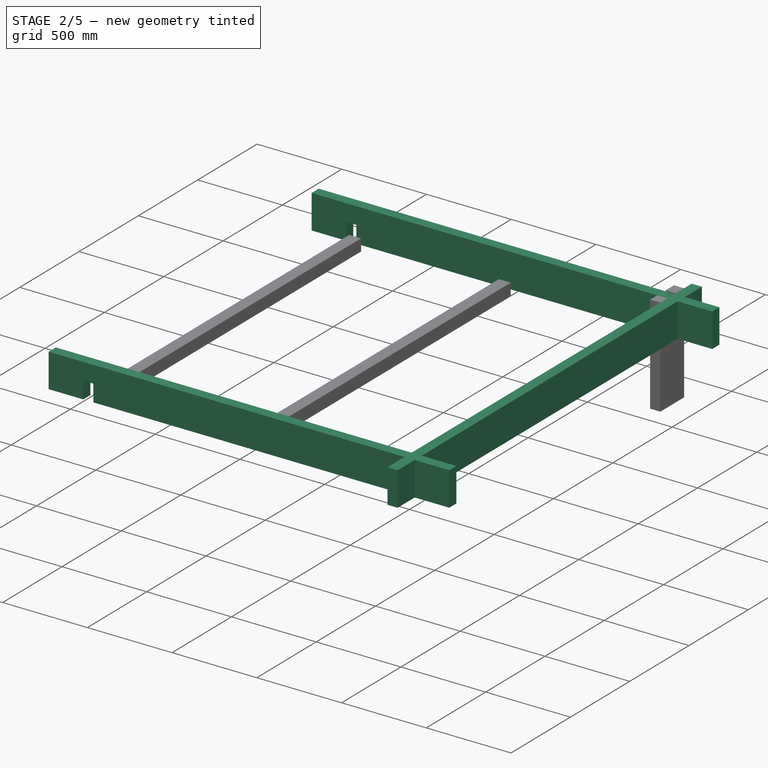
[diagram: stage 2 of 5 — iso view after this stage's code; geometry added in this stage tinted green]
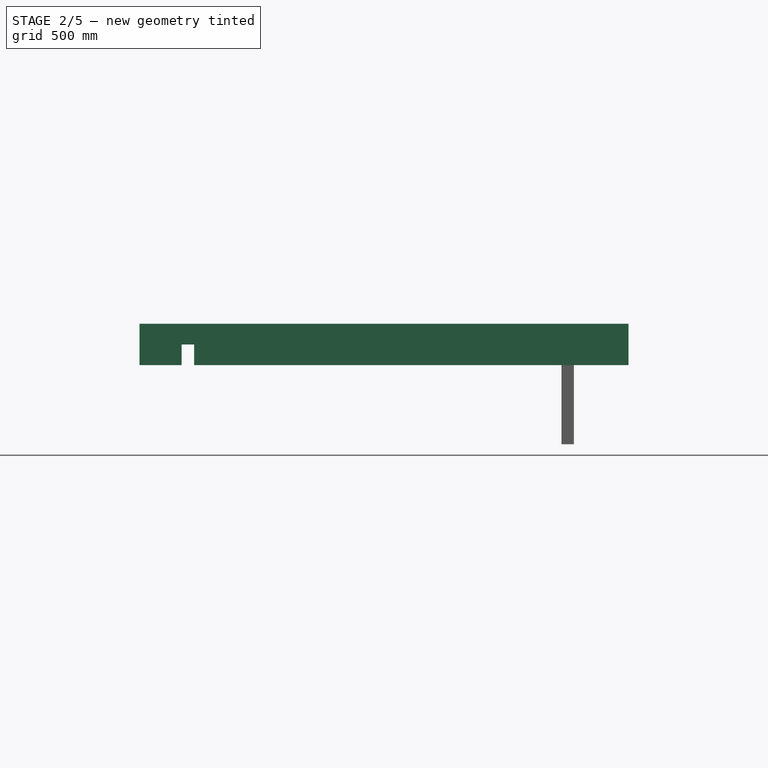
[diagram: stage 2 of 5 — front view after this stage's code; geometry added in this stage tinted green]
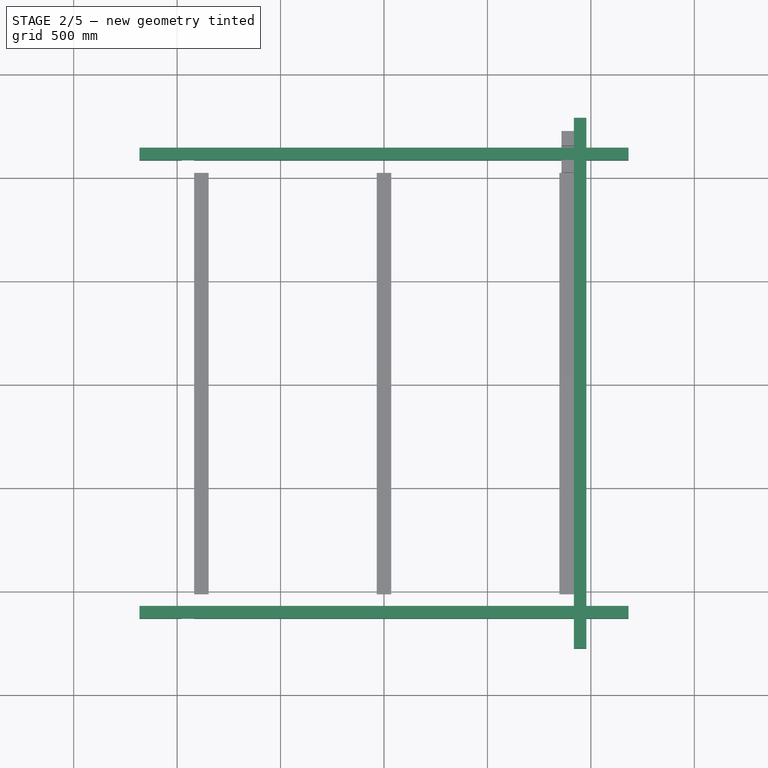
[diagram: stage 2 of 5 — top view after this stage's code; geometry added in this stage tinted green]
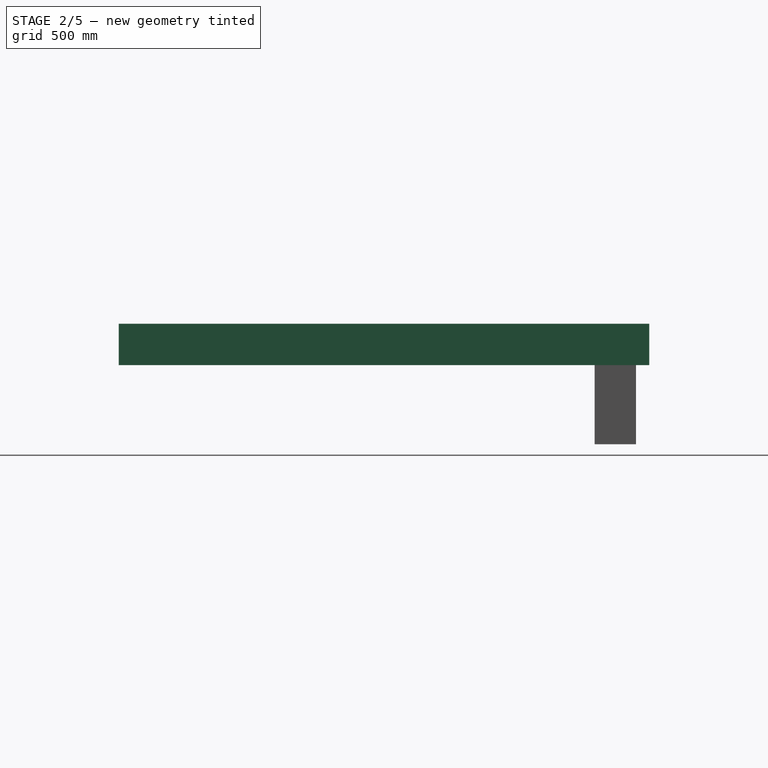
[diagram: stage 2 of 5 — right view after this stage's code; geometry added in this stage tinted green]
FEATURE [App::DocumentObjectGroup] Group013  label="Main Pillars"
  Group = -> [Clone031,Clone032,Clone033,Clone034,Clone035,Clone036,Clone037,Clone038]
FEATURE [Sketcher::SketchObject] Sketch013  label="Bottom Long Beam Format"
  MapMode = 5
  Placement = pos=(0,0,0) rot=(0.57735,0.57735,0.57735;2.0944rad)
  expr: Constraints[35] = Dimensions.mattress_length + 2 * Dimensions.surface_thickness + 2 * Dimensions.beam_width
  expr: Constraints[34] = Dimensions.mattress_length + 2 * Dimensions.seat_width - 2 * Dimensions.surface_thickness
  expr: Constraints[33] = Dimensions.beam_height
  expr: Constraints[32] = Dimensions.beam_height / 2
  expr: Constraints[31] = Dimensions.beam_width
  sketch-geometry (12):
    g0: LineSegment StartX=-1282 StartY=-100 StartZ=0 EndX=1282 EndY=-100 EndZ=0
    g1: LineSegment StartX=1282 StartY=-100 StartZ=0 EndX=1282 EndY=100 EndZ=0
    g2: LineSegment StartX=1282 StartY=100 StartZ=0 EndX=1138 EndY=100 EndZ=0
    g3: LineSegment StartX=1138 StartY=0 StartZ=0 EndX=1138 EndY=100 EndZ=0
    g4: LineSegment StartX=1138 StartY=0 StartZ=0 EndX=1078 EndY=0 EndZ=0
    g5: LineSegment StartX=1078 StartY=0 StartZ=0 EndX=1078 EndY=100 EndZ=0
    g6: LineSegment StartX=1078 StartY=100 StartZ=0 EndX=-1078 EndY=100 EndZ=0
    g7: LineSegment StartX=-1078 StartY=100 StartZ=0 EndX=-1078 EndY=0 EndZ=0
    g8: LineSegment StartX=-1078 StartY=0 StartZ=0 EndX=-1138 EndY=0 EndZ=0
    g9: LineSegment StartX=-1138 StartY=0 StartZ=0 EndX=-1138 EndY=100 EndZ=0
    g10: LineSegment StartX=-1138 StartY=100 StartZ=0 EndX=-1282 EndY=100 EndZ=0
    g11: LineSegment StartX=-1282 StartY=100 StartZ=0 EndX=-1282 EndY=-100 EndZ=0
  constraints (36):
    c: Horizontal(g0)
    c: Coincident(g1,g0)
    c: Vertical(g1)
    c: Coincident(g2,g1)
    c: Horizontal(g2)
    c: Coincident(g3,g2)
    c: Vertical(g3)
    c: Coincident(g4,g3)
    c: Horizontal(g4)
    c: Coincident(g5,g4)
    c: Vertical(g5)
    c: Coincident(g6,g5)
    c: Horizontal(g6)
    c: Coincident(g7,g6)
    c: Vertical(g7)
    c: Coincident(g8,g7)
    c: Coincident(g9,g8)
    c: Vertical(g9)
    c: Coincident(g10,g9)
    c: Horizontal(g10)
    c: Coincident(g11,g10)
    c: Coincident(g11,g0)
    c: Vertical(g11)
    c: Horizontal(g8)
    c: Equal(g10,g2)
    c: Equal(g9,g7)
    c: Equal(g5,g3)
    c: Equal(g5,g7)
    c: Equal(g8,g4)
    c: Symmetric(g10,g0,g-1)
    c: Symmetric(g10,g1,g-2)
    c: DistanceX(g8,g8) = 60
    c: DistanceY(g9,g9) = 100
    c: DistanceY(g11,g11) = 200
    c: DistanceX(g0,g0) = 2564
    c: DistanceX(g6,g6) = 2156
FEATURE [PartDesign::Pad] Pad013  label="Bottom Long Beam"
  Length = 60
  Length2 = 100
  Midplane = true
  Placement = pos=(0,0,0) rot=(0.57735,0.57735,0.57735;2.0944rad)
  Profile = -> Sketch013
  Type = 0
  expr: Length = Dimensions.beam_width
FEATURE [Part::FeaturePython] Clone040  label="Right Long Beam"  # Draft clone (typed FeaturePython)
  Objects = -> [Pad013]
  Placement = pos=(948,0,482) rot=(0.57735,0.57735,0.57735;2.0944rad)
  Scale = (1,1,1)
  expr: Placement.Base.x = +1 * (Dimensions.mattress_width / 2 + Dimensions.surface_thickness + Dimensions.beam_width / 2)
  expr: Placement.Base.z = -1 * Dimensions.beam_height / 2 + Dimensions.seat_height - Dimensions.surface_thickness
FEATURE [Sketcher::SketchObject] Sketch014  label="Top Long Beam Format"
  MapMode = 5
  Placement = pos=(0,0,0) rot=(1,0,0;1.5708rad)
  expr: Constraints[21] = Dimensions.mattress_width + 2 * Dimensions.seat_width - 2 * Dimensions.surface_thickness
  expr: Constraints[30] = Dimensions.beam_height / 2
  expr: Constraints[31] = Dimensions.mattress_width + 2 * Dimensions.surface_thickness
  expr: Constraints[34] = Dimensions.beam_height
  expr: Constraints[29] = Dimensions.beam_width
  sketch-geometry (12):
    g0: LineSegment StartX=-1182 StartY=100 StartZ=0 EndX=1182 EndY=100 EndZ=0
    g1: LineSegment StartX=1182 StartY=100 StartZ=0 EndX=1182 EndY=-100 EndZ=0
    g2: LineSegment StartX=1182 StartY=-100 StartZ=0 EndX=978 EndY=-100 EndZ=0
    g3: LineSegment StartX=978 StartY=-100 StartZ=0 EndX=978 EndY=0 EndZ=0
    g4: LineSegment StartX=978 StartY=0 StartZ=0 EndX=918 EndY=0 EndZ=0
    g5: LineSegment StartX=918 StartY=0 StartZ=0 EndX=918 EndY=-100 EndZ=0
    g6: LineSegment StartX=918 StartY=-100 StartZ=0 EndX=-918 EndY=-100 EndZ=0
    g7: LineSegment StartX=-918 StartY=-100 StartZ=0 EndX=-918 EndY=0 EndZ=0
    g8: LineSegment StartX=-918 StartY=0 StartZ=0 EndX=-978 EndY=0 EndZ=0
    g9: LineSegment StartX=-978 StartY=0 StartZ=0 EndX=-978 EndY=-100 EndZ=0
    g10: LineSegment StartX=-978 StartY=-100 StartZ=0 EndX=-1182 EndY=-100 EndZ=0
    g11: LineSegment StartX=-1182 StartY=-100 StartZ=0 EndX=-1182 EndY=100 EndZ=0
  constraints (36):
    c: Horizontal(g0)
    c: Coincident(g1,g0)
    c: Vertical(g1)
    c: Coincident(g2,g1)
    c: Horizontal(g2)
    c: Coincident(g3,g2)
    c: Coincident(g4,g3)
    c: Coincident(g5,g4)
    c: Vertical(g5)
    c: Coincident(g6,g5)
    c: Coincident(g7,g6)
    c: Vertical(g7)
    c: Coincident(g8,g7)
    c: Horizontal(g8)
    c: Coincident(g9,g8)
    c: Vertical(g9)
    c: Coincident(g10,g9)
    c: Horizontal(g10)
    c: Coincident(g11,g10)
    c: Coincident(g11,g0)
    c: Vertical(g11)
    c: DistanceX(g0,g0) = 2364
    c: Symmetric(g0,g0,g-2)
    c: Equal(g9,g7)
    c: Equal(g5,g3)
    c: Equal(g9,g5)
    c: Horizontal(g4)
    c: Vertical(g3)
    c: Equal(g8,g4)
    c: DistanceX(g8,g8) = 60
    c: DistanceY(g7,g7) = 100
    c: DistanceX(g6,g6) = 1836
    c: Symmetric(g0,g10,g-1)
    c: Symmetric(g10,g1,g-2)
    c: DistanceY(g11,g11) = 200
    c: Symmetric(g6,g5,g-2)
FEATURE [PartDesign::Pad] Pad014  label="Top Long Beam"
  Length = 60
  Length2 = 100
  Midplane = true
  Placement = pos=(0,0,0) rot=(1,0,0;1.5708rad)
  Profile = -> Sketch014
  Type = 0
  expr: Length = Dimensions.beam_width
FEATURE [Part::FeaturePython] Clone041  label="Head Long Beam"  # Draft clone (typed FeaturePython)
  Objects = -> [Pad014]
  Placement = pos=(0,1108,482) rot=(1,0,0;1.5708rad)
  Scale = (1,1,1)
  expr: Placement.Base.z = -1 * Dimensions.beam_height / 2 + Dimensions.seat_height - Dimensions.surface_thickness
  expr: Placement.Base.y = 1 * (Dimensions.mattress_length / 2 + Dimensions.beam_width * 3 / 2 + Dimensions.surface_thickness)
FEATURE [App::DocumentObjectGroup] Group015  label="Bottoms"
  Group = -> [Clone039,Clone040]
FEATURE [Part::FeaturePython] Clone042  label="Foot Long Beam"  # Draft clone (typed FeaturePython)
  Objects = -> [Pad014]
  Placement = pos=(0,-1108,482) rot=(1,0,0;1.5708rad)
  Scale = (1,1,1)
  expr: Placement.Base.y = -1 * (Dimensions.mattress_length / 2 + Dimensions.beam_width * 3 / 2 + Dimensions.surface_thickness)
  expr: Placement.Base.z = -1 * Dimensions.beam_height / 2 + Dimensions.seat_height - Dimensions.surface_thickness
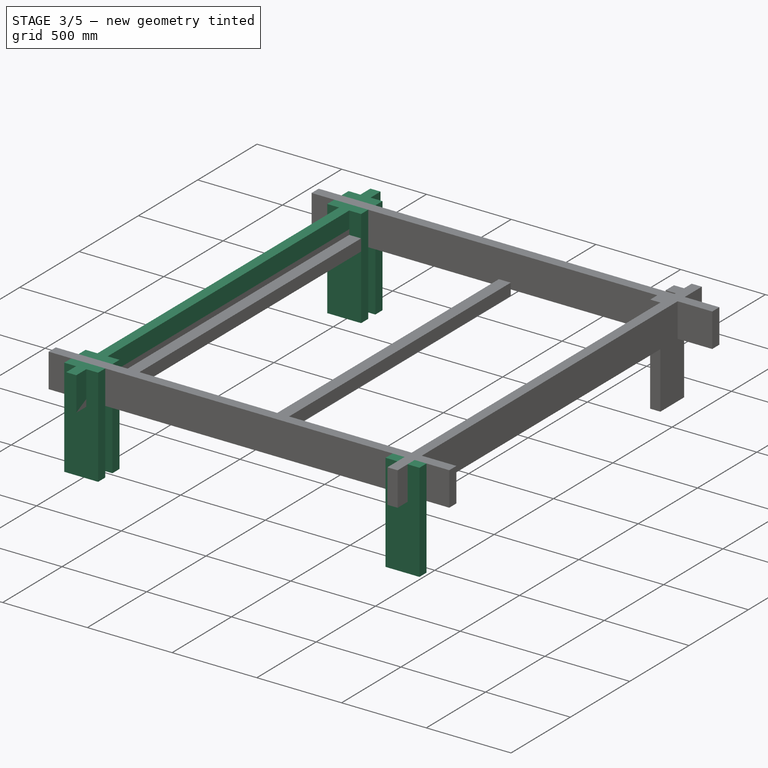
[diagram: stage 3 of 5 — iso view after this stage's code; geometry added in this stage tinted green]
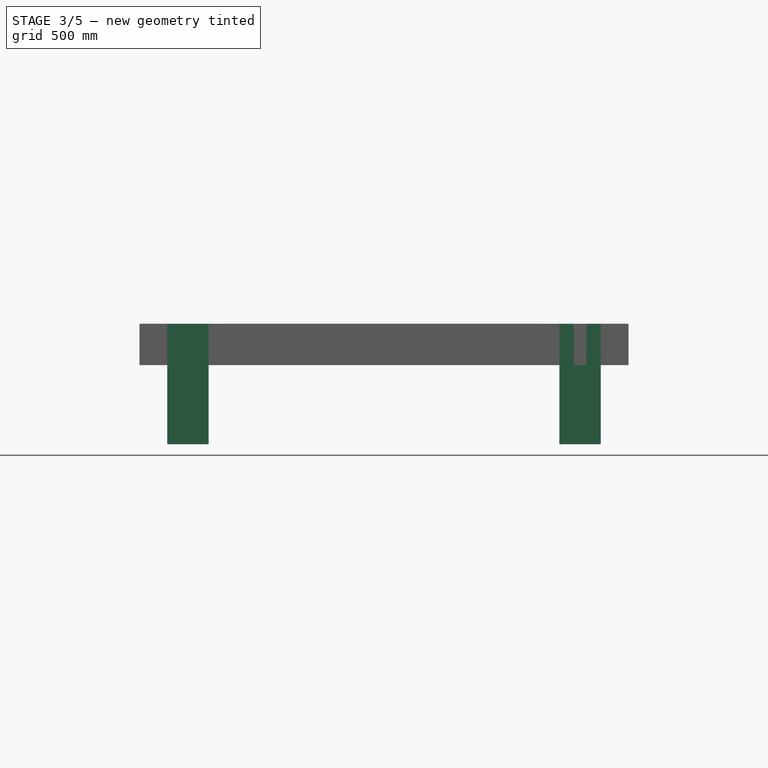
[diagram: stage 3 of 5 — front view after this stage's code; geometry added in this stage tinted green]
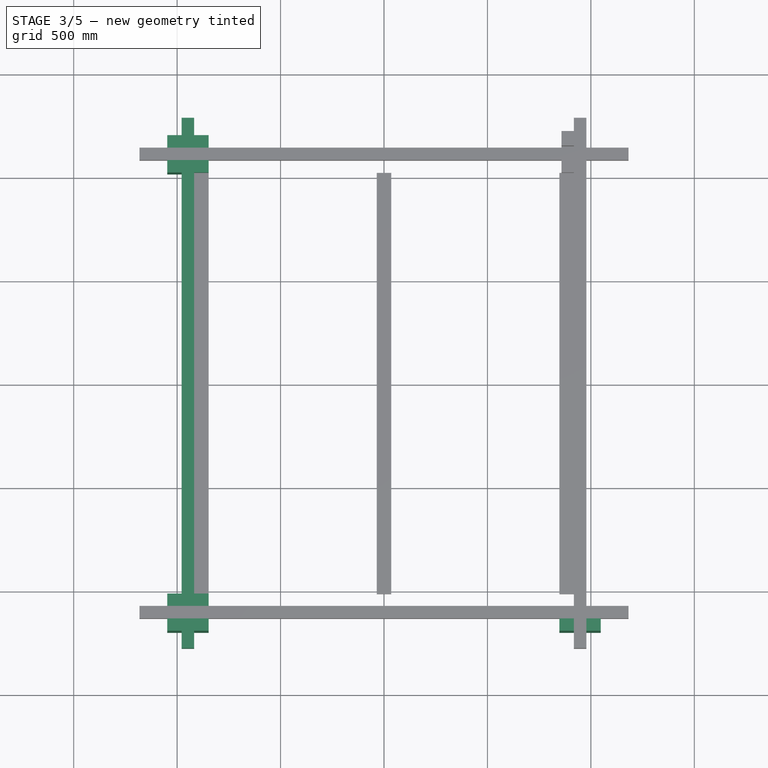
[diagram: stage 3 of 5 — top view after this stage's code; geometry added in this stage tinted green]
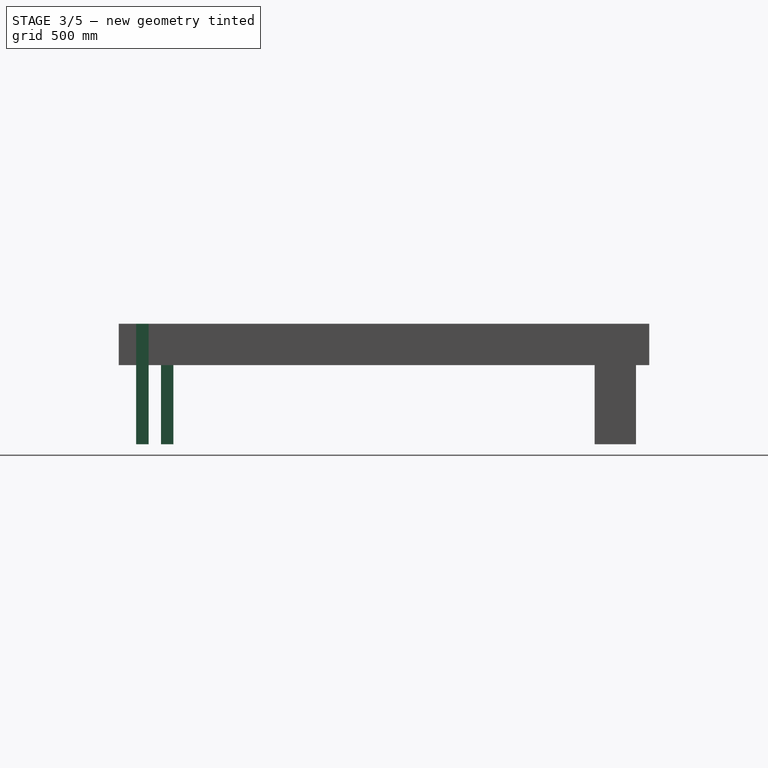
[diagram: stage 3 of 5 — right view after this stage's code; geometry added in this stage tinted green]
FEATURE [Part::FeaturePython] Clone034  label="Outer Bottom Right Main Pillar"  # Draft clone (typed FeaturePython)
  Objects = -> [Pad012]
  Placement = pos=(948,-1168,291) rot=(0,0.707107,0.707107;3.14159rad)
  Scale = (1,1,1)
  expr: Placement.Base.x = 1 * (Dimensions.mattress_width / 2 + Dimensions.beam_width / 2 + Dimensions.surface_thickness)
  expr: Placement.Base.y = -1 * (Dimensions.mattress_length / 2 + Dimensions.beam_width / 2 + 2 * Dimensions.beam_width + Dimensions.surface_thickness)
  expr: Placement.Base.z = (Dimensions.seat_height - Dimensions.surface_thickness) / 2
FEATURE [Part::FeaturePython] Clone035  label="Outer Top Left Main Pillar"  # Draft clone (typed FeaturePython)
  Objects = -> [Pad012]
  Placement = pos=(-948,1168,291) rot=(1,0,0;1.5708rad)
  Scale = (1,1,1)
  expr: Placement.Base.z = (Dimensions.seat_height - Dimensions.surface_thickness) / 2
  expr: Placement.Base.y = 1 * (Dimensions.mattress_length / 2 + Dimensions.beam_width / 2 + 2 * Dimensions.beam_width + Dimensions.surface_thickness)
  expr: Placement.Base.x = -1 * (Dimensions.mattress_width / 2 + Dimensions.beam_width / 2 + Dimensions.surface_thickness)
FEATURE [Part::FeaturePython] Clone036  label="Inner Top Left Main Pillar"  # Draft clone (typed FeaturePython)
  Objects = -> [Pad012]
  Placement = pos=(-948,1048,291) rot=(1,0,0;1.5708rad)
  Scale = (1,1,1)
  expr: Placement.Base.y = 1 * (Dimensions.mattress_length / 2 + Dimensions.beam_width / 2 + Dimensions.surface_thickness)
  expr: Placement.Base.x = -1 * (Dimensions.mattress_width / 2 + Dimensions.beam_width / 2 + Dimensions.surface_thickness)
  expr: Placement.Base.z = (Dimensions.seat_height - Dimensions.surface_thickness) / 2
FEATURE [Part::FeaturePython] Clone037  label="Inner Bottom Left Main Pillar"  # Draft clone (typed FeaturePython)
  Objects = -> [Pad012]
  Placement = pos=(-948,-1048,291) rot=(1,0,0;1.5708rad)
  Scale = (1,1,1)
  expr: Placement.Base.y = -1 * (Dimensions.mattress_length / 2 + Dimensions.beam_width / 2 + Dimensions.surface_thickness)
  expr: Placement.Base.x = -1 * (Dimensions.mattress_width / 2 + Dimensions.beam_width / 2 + Dimensions.surface_thickness)
  expr: Placement.Base.z = (Dimensions.seat_height - Dimensions.surface_thickness) / 2
FEATURE [Part::FeaturePython] Clone038  label="Outer Bottom Left Main Pillar"  # Draft clone (typed FeaturePython)
  Objects = -> [Pad012]
  Placement = pos=(-948,-1168,291) rot=(1,0,0;1.5708rad)
  Scale = (1,1,1)
  expr: Placement.Base.y = -1 * (Dimensions.mattress_length / 2 + Dimensions.beam_width / 2 + 2 * Dimensions.beam_width + Dimensions.surface_thickness)
  expr: Placement.Base.x = -1 * (Dimensions.mattress_width / 2 + Dimensions.beam_width / 2 + Dimensions.surface_thickness)
  expr: Placement.Base.z = (Dimensions.seat_height - Dimensions.surface_thickness) / 2
FEATURE [Part::FeaturePython] Clone039  label="Left Long Beam"  # Draft clone (typed FeaturePython)
  Objects = -> [Pad013]
  Placement = pos=(-948,0,482) rot=(0.57735,0.57735,0.57735;2.0944rad)
  Scale = (1,1,1)
  expr: Placement.Base.z = -1 * Dimensions.beam_height / 2 + Dimensions.seat_height - Dimensions.surface_thickness
  expr: Placement.Base.x = -1 * (Dimensions.mattress_width / 2 + Dimensions.surface_thickness + Dimensions.beam_width / 2)
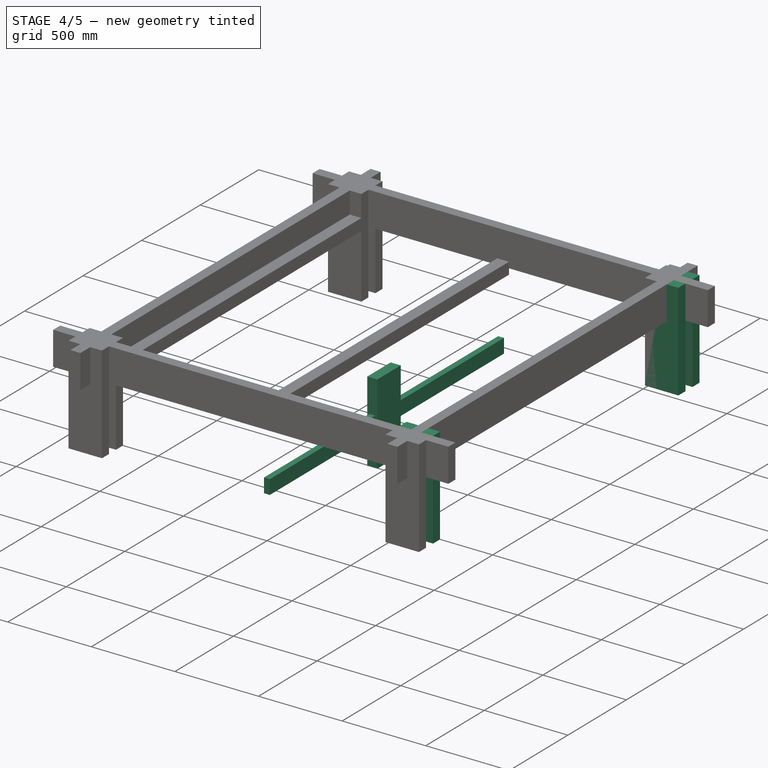
[diagram: stage 4 of 5 — iso view after this stage's code; geometry added in this stage tinted green]
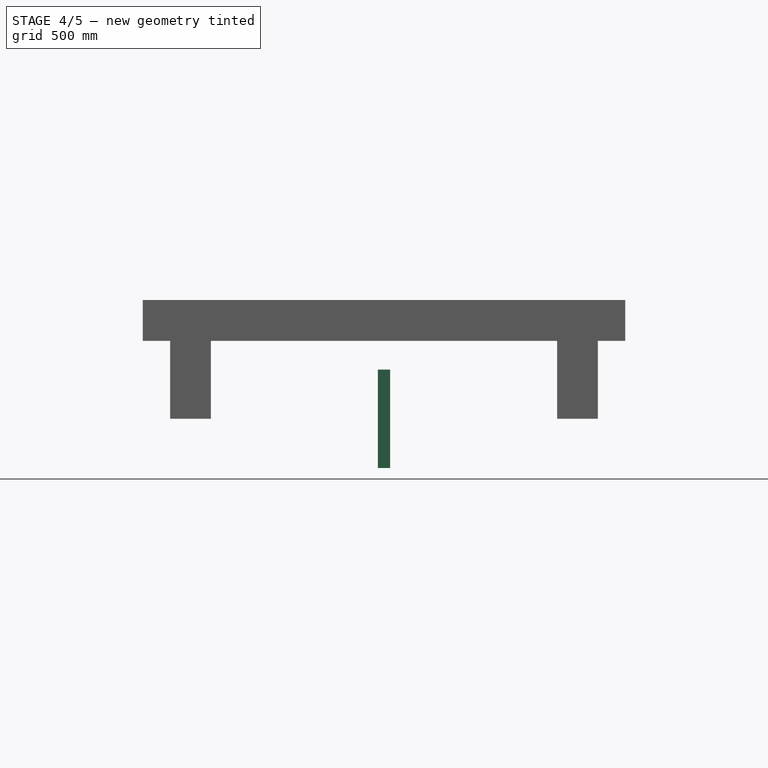
[diagram: stage 4 of 5 — front view after this stage's code; geometry added in this stage tinted green]
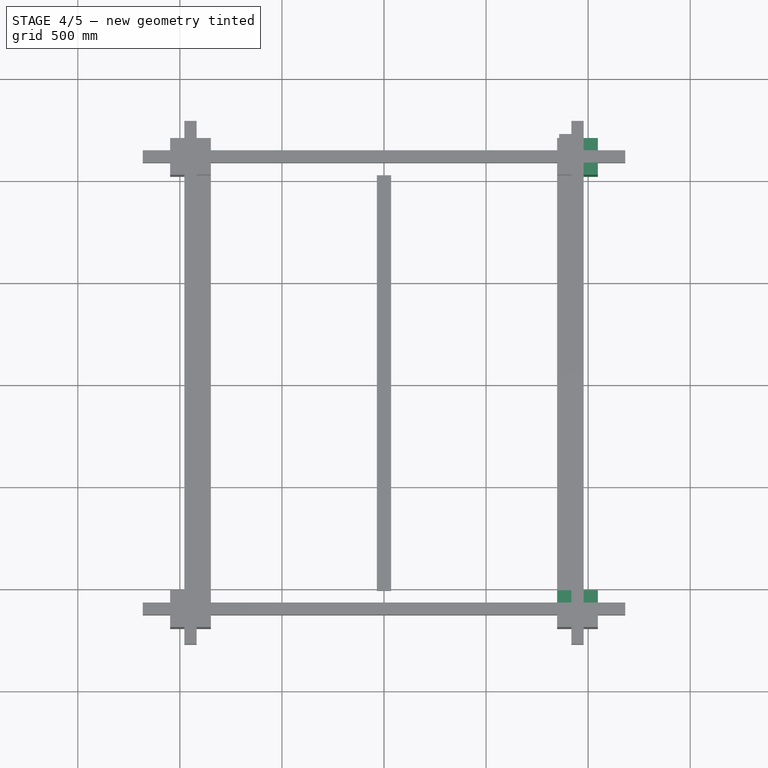
[diagram: stage 4 of 5 — top view after this stage's code; geometry added in this stage tinted green]
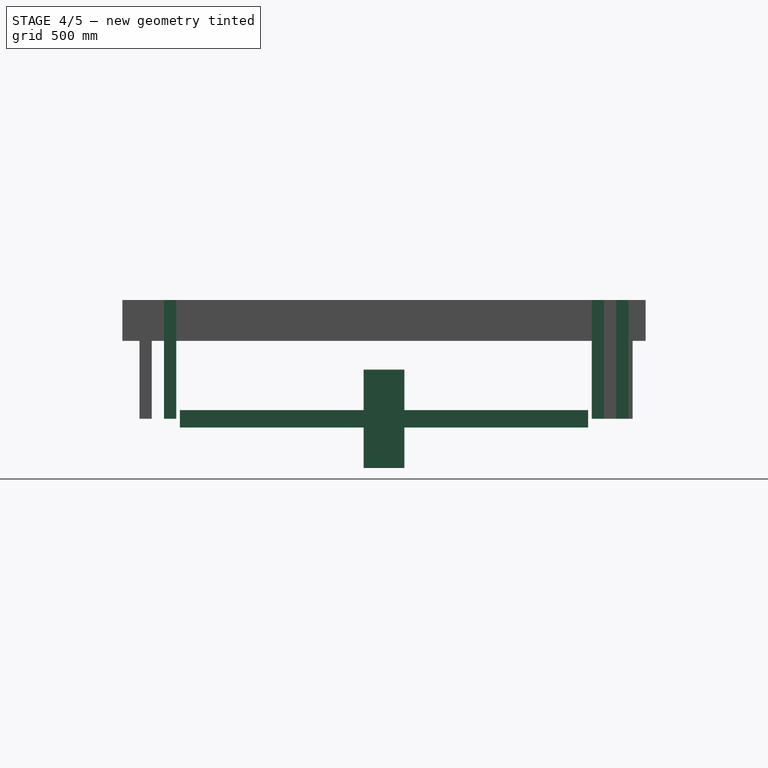
[diagram: stage 4 of 5 — right view after this stage's code; geometry added in this stage tinted green]
FEATURE [App::DocumentObjectGroup] Group  label="Mattress"
  Group = -> [Box,Fillet]
FEATURE [Spreadsheet::Sheet] Spreadsheet  label="Dimensions"
  cells = A1=Mattress; D1=Slat supports; G1=Beams; A2=length; B2(mattress_length)==2000mm; D2=Slat width; E2(slat_width)==35mm; G2=width; H2(beam_width)==loadbearer_width; A3=width; B3(mattress_width)==1800mm; D3=Slat height; E3(slat_height)==85mm; G3=height; H3(beam_height)==loadbearer_height; A4=radius; B4(mattrass_edge_radius)==20mm; D4=slat_foundation_side; E4(slat_foundation_side)==2 * slat_width; G4=groove; H4(beam_groove)==0.5 * beam_height; A5=height; B5(mattress_depth)==250mm; A7=Loadbearer; G7=seat_height; H7(seat_height)==600mm; A8=length; B8(loadbearer_length)==2600mm; D8=footend_pos; E8==0mm; G8=seat_width; H8(seat_width)==300mm; A9=height; B9(loadbearer_height)==200mm; D9=mid_pos; A10=width; B10(loadbearer_width)==60mm; D10=head_pos; A11=Pillars; D11=Surfaces; A12=height; B12(pillar_height)==400mm; D12=offset; E12(surface_offset)==0mm; D13=thickness; E13(surface_thickness)==18mm
FEATURE [Sketcher::SketchObject] Sketch007  label="Support Outline"
  MapMode = 5
  Placement = pos=(0,0,0) rot=(1,0,0;1.5708rad)
  expr: Constraints[13] = Dimensions.slat_height
  expr: Constraints[12] = Dimensions.slat_width
  sketch-geometry (5):
    g0: LineSegment [constr] StartX=0 StartY=100 StartZ=0 EndX=0 EndY=-100 EndZ=0
    g1: LineSegment StartX=-17.5 StartY=42.5 StartZ=0 EndX=17.5 EndY=42.5 EndZ=0
    g2: LineSegment StartX=17.5 StartY=42.5 StartZ=0 EndX=17.5 EndY=-42.5 EndZ=0
    g3: LineSegment StartX=17.5 StartY=-42.5 StartZ=0 EndX=-17.5 EndY=-42.5 EndZ=0
    g4: LineSegment StartX=-17.5 StartY=-42.5 StartZ=0 EndX=-17.5 EndY=42.5 EndZ=0
  constraints (14):
    c: Vertical(g0)
    c: PointOnObject(g-1,g0)
    c: Coincident(g1,g2)
    c: Coincident(g2,g3)
    c: Coincident(g3,g4)
    c: Coincident(g4,g1)
    c: Horizontal(g1)
    c: Horizontal(g3)
    c: Vertical(g2)
    c: Vertical(g4)
    c: Symmetric(g2,g1,g-1)
    c: Symmetric(g1,g1,g0)
    c: DistanceX(g3,g3) = 35
    c: DistanceY(g4,g4) = 85
FEATURE [PartDesign::Pad] Pad006  label="Slat Format"
  Length = 2000
  Length2 = 100
  Midplane = true
  Placement = pos=(0,0,0) rot=(1,0,0;1.5708rad)
  Profile = -> Sketch007
  Type = 0
  expr: Length = Dimensions.mattress_length
FEATURE [App::DocumentObjectGroup] Group005  label="Slat supports"
  Group = -> [Clone005,Clone006,Clone007,Clone008]
FEATURE [Sketcher::SketchObject] Sketch008  label="Pillar Format Outline"
  MapMode = 5
  Placement = pos=(0,0,0) rot=(1,0,0;1.5708rad)
  expr: Placement.Base.z = 0mm
  expr: Constraints[11] = Dimensions.seat_height - Dimensions.surface_thickness - Dimensions.beam_height + Dimensions.beam_groove
  expr: Constraints[10] = Dimensions.loadbearer_width
  sketch-geometry (4):
    g0: LineSegment StartX=-30 StartY=241 StartZ=0 EndX=30 EndY=241 EndZ=0
    g1: LineSegment StartX=30 StartY=241 StartZ=0 EndX=30 EndY=-241 EndZ=0
    g2: LineSegment StartX=30 StartY=-241 StartZ=0 EndX=-30 EndY=-241 EndZ=0
    g3: LineSegment StartX=-30 StartY=-241 StartZ=0 EndX=-30 EndY=241 EndZ=0
  constraints (12):
    c: Coincident(g0,g1)
    c: Coincident(g1,g2)
    c: Coincident(g2,g3)
    c: Coincident(g3,g0)
    c: Horizontal(g0)
    c: Horizontal(g2)
    c: Vertical(g1)
    c: Vertical(g3)
    c: Symmetric(g0,g0,g-2)
    c: Symmetric(g0,g1,g-1)
    c: DistanceX(g0,g0) = 60
    c: DistanceY(g1,g1) = 482
FEATURE [PartDesign::Pad] Pad008  label="Pillar Format"
  Length = 200
  Length2 = 100
  Midplane = true
  Placement = pos=(0,0,0) rot=(1,0,0;1.5708rad)
  Profile = -> Sketch008
  Type = 0
  expr: Length = Dimensions.loadbearer_height
FEATURE [Part::FeaturePython] Clone031  label="Outer Top Right Main Pillar"  # Draft clone (typed FeaturePython)
  Objects = -> [Pad012]
  Placement = pos=(948,1168,291) rot=(0,0.707107,0.707107;3.14159rad)
  Scale = (1,1,1)
  expr: Placement.Base.y = 1 * (Dimensions.mattress_length / 2 + Dimensions.beam_width / 2 + 2 * Dimensions.beam_width + Dimensions.surface_thickness)
  expr: Placement.Base.x = 1 * (Dimensions.mattress_width / 2 + Dimensions.beam_width / 2 + Dimensions.surface_thickness)
  expr: Placement.Base.z = (Dimensions.seat_height - Dimensions.surface_thickness) / 2
FEATURE [Part::FeaturePython] Clone032  label="Inner Top Right Main Pillar"  # Draft clone (typed FeaturePython)
  Objects = -> [Pad012]
  Placement = pos=(948,1048,291) rot=(0,0.707107,0.707107;3.14159rad)
  Scale = (1,1,1)
  expr: Placement.Base.y = 1 * (Dimensions.mattress_length / 2 + Dimensions.beam_width / 2 + Dimensions.surface_thickness)
  expr: Placement.Base.x = 1 * (Dimensions.mattress_width / 2 + Dimensions.beam_width / 2 + Dimensions.surface_thickness)
  expr: Placement.Base.z = (Dimensions.seat_height - Dimensions.surface_thickness) / 2
FEATURE [Part::FeaturePython] Clone033  label="Inner Bottom Right Main Pillar"  # Draft clone (typed FeaturePython)
  Objects = -> [Pad012]
  Placement = pos=(948,-1048,291) rot=(0,0.707107,0.707107;3.14159rad)
  Scale = (1,1,1)
  expr: Placement.Base.x = 1 * (Dimensions.mattress_width / 2 + Dimensions.beam_width / 2 + Dimensions.surface_thickness)
  expr: Placement.Base.y = -1 * (Dimensions.mattress_length / 2 + Dimensions.beam_width / 2 + Dimensions.surface_thickness)
  expr: Placement.Base.z = (Dimensions.seat_height - Dimensions.surface_thickness) / 2
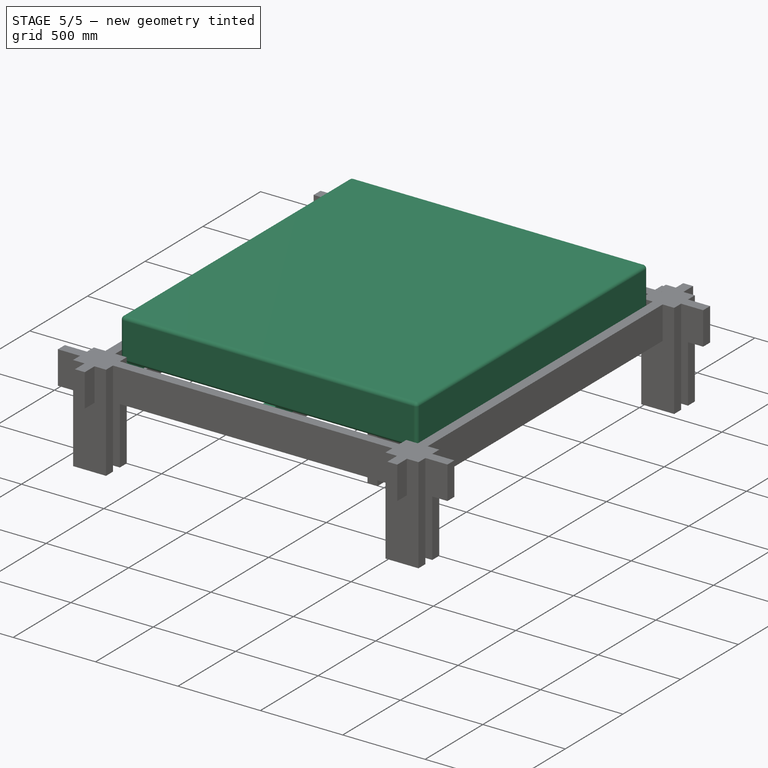
[diagram: stage 5 of 5 — iso view after this stage's code; geometry added in this stage tinted green]
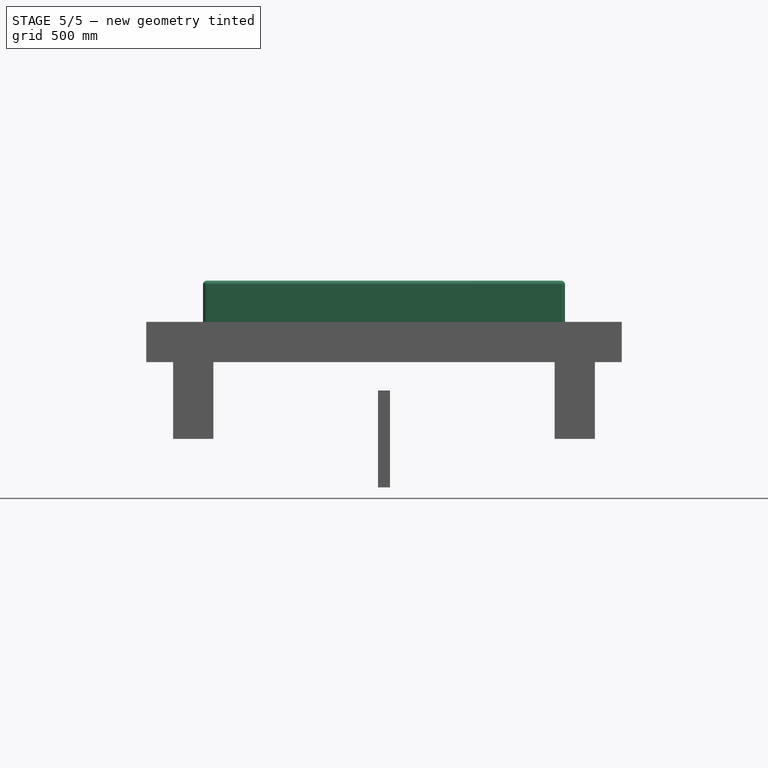
[diagram: stage 5 of 5 — front view after this stage's code; geometry added in this stage tinted green]
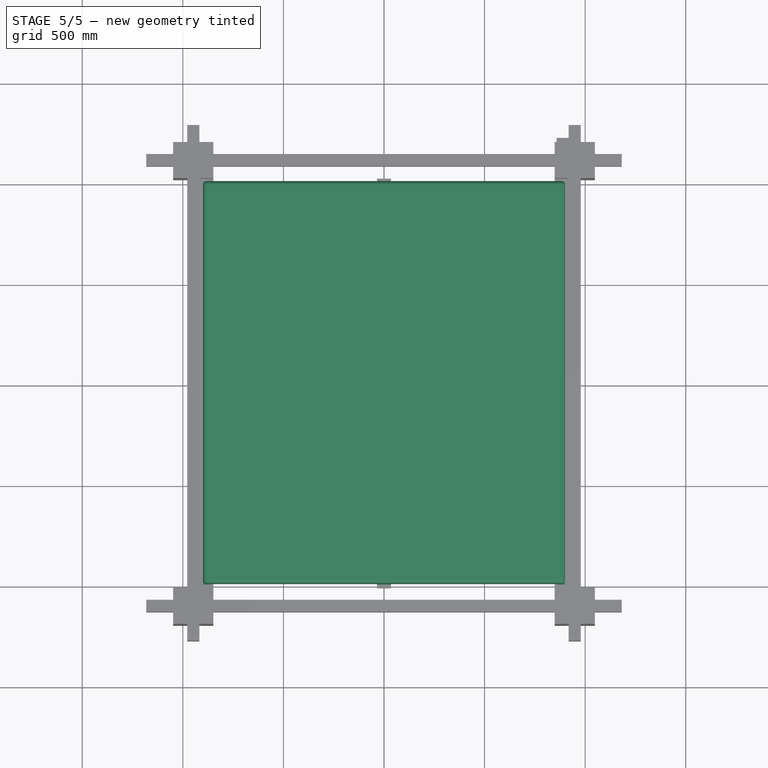
[diagram: stage 5 of 5 — top view after this stage's code; geometry added in this stage tinted green]
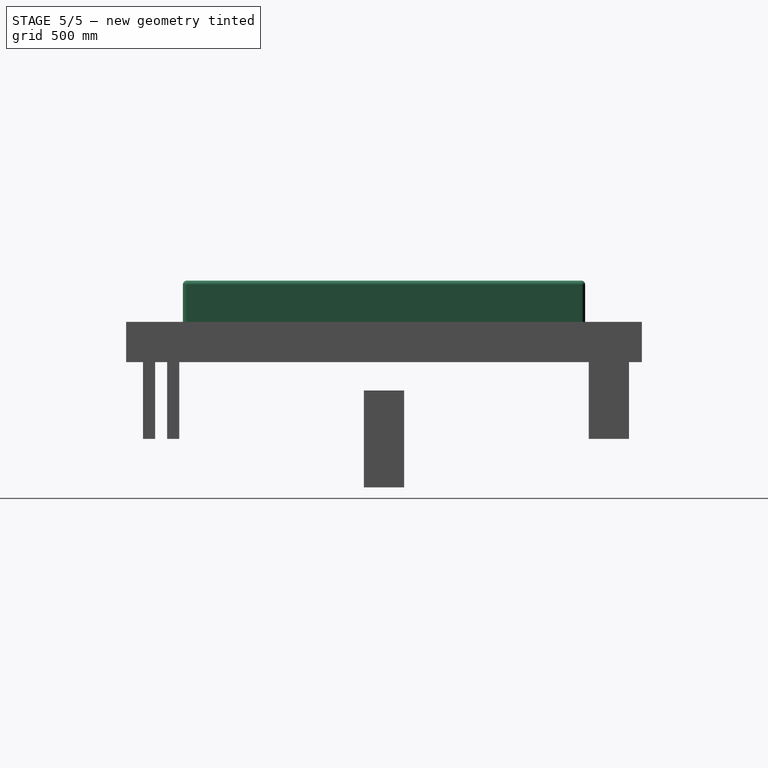
[diagram: stage 5 of 5 — right view after this stage's code; geometry added in this stage tinted green]
FEATURE [Part::Box] Box  label="mattress"
  AttacherType = Attacher::AttachEngine3D
  Height = 250
  Length = 1800
  Placement = pos=(-900,-1000,537) rot=(0,0,1;0rad)
  Width = 2000
  expr: Placement.Base.z = Dimensions.seat_height - Dimensions.surface_thickness - Dimensions.beam_height + Dimensions.slat_foundation_side + Dimensions.slat_height
  expr: Height = Dimensions.mattress_depth
  expr: Placement.Base.y = -Dimensions.mattress_length / 2
  expr: Placement.Base.x = -Dimensions.mattress_width / 2
  expr: Width = Dimensions.mattress_length
  expr: Length = Dimensions.mattress_width
FEATURE [PartDesign::Fillet] Fillet
  Base = -> Box [Edge10,Edge1,Edge2,Edge4,Edge9,Edge5,Edge6,Edge8,Edge7,Edge12,Edge11,Edge3]
  Placement = pos=(-900,-1000,537) rot=(0,0,1;0rad)
  Radius = 20
  expr: Radius = Dimensions.mattrass_edge_radius
FEATURE [Part::FeaturePython] Clone005  label="Right"  # Draft clone (typed FeaturePython)
  Objects = -> [Pad006]
  Placement = pos=(17.5,0,494.5) rot=(1,0,0;1.5708rad)
  Scale = (1,1,1)
  expr: Placement.Base.z = Dimensions.slat_height / 2 + Dimensions.seat_height - Dimensions.beam_height - Dimensions.surface_thickness + Dimensions.slat_foundation_side
  expr: Placement.Base.x = Dimensions.slat_width / 2
FEATURE [Part::FeaturePython] Clone006  label="Left"  # Draft clone (typed FeaturePython)
  Objects = -> [Pad006]
  Placement = pos=(-17.5,0,494.5) rot=(1,0,0;1.5708rad)
  Scale = (1,1,1)
  expr: Placement.Base.z = Dimensions.slat_height / 2 + Dimensions.seat_height - Dimensions.beam_height - Dimensions.surface_thickness + Dimensions.slat_foundation_side
  expr: Placement.Base.x = -Dimensions.slat_width / 2
FEATURE [Part::FeaturePython] Clone007  label="Rightmost"  # Draft clone (typed FeaturePython)
  Objects = -> [Pad006]
  Placement = pos=(882.5,0,494.5) rot=(1,0,0;1.5708rad)
  Scale = (1,1,1)
  expr: Placement.Base.z = Dimensions.slat_height / 2 + Dimensions.seat_height - Dimensions.beam_height - Dimensions.surface_thickness + Dimensions.slat_foundation_side
  expr: Placement.Base.x = Dimensions.mattress_width / 2 - Dimensions.slat_width / 2
FEATURE [Part::FeaturePython] Clone008  label="Leftmost"  # Draft clone (typed FeaturePython)
  Objects = -> [Pad006]
  Placement = pos=(-882.5,0,494.5) rot=(1,0,0;1.5708rad)
  Scale = (1,1,1)
  expr: Placement.Base.z = Dimensions.slat_height / 2 + Dimensions.seat_height - Dimensions.beam_height - Dimensions.surface_thickness + Dimensions.slat_foundation_side
  expr: Placement.Base.x = -1 * (Dimensions.mattress_width / 2 - Dimensions.slat_width / 2)
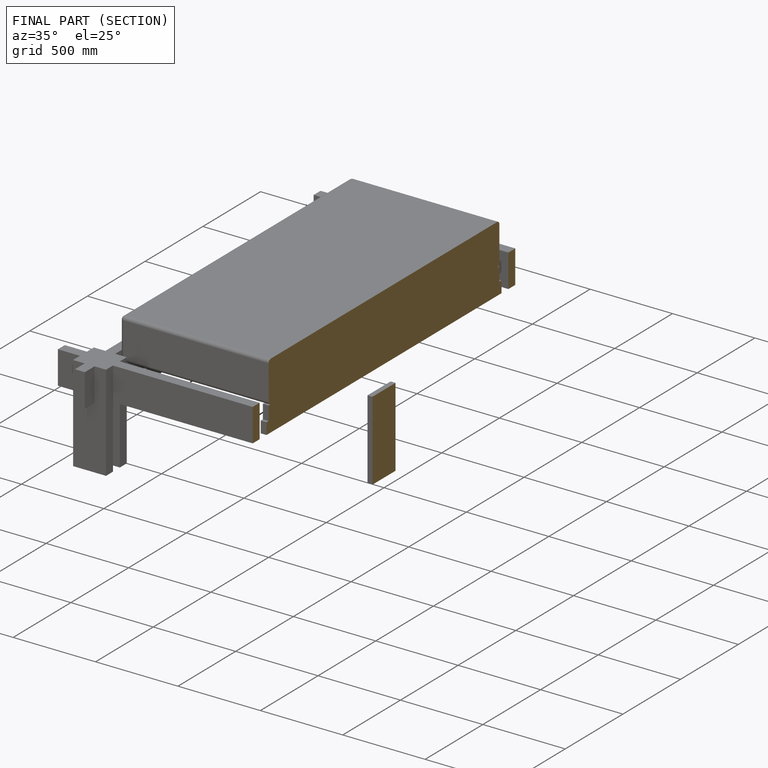
[diagram: finished part — half-section view (interior)]
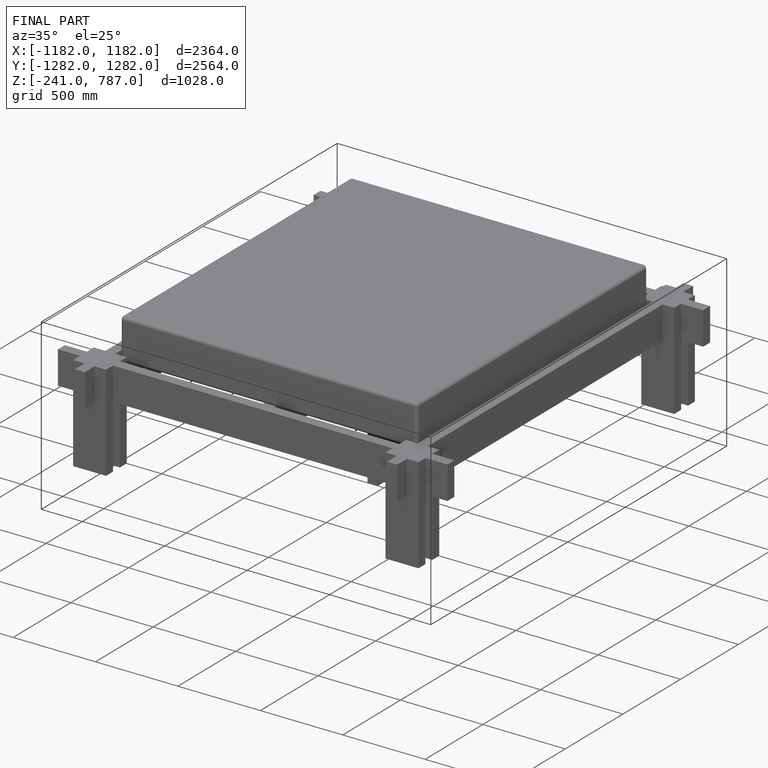
[diagram: finished part — iso view with bounding-box wireframe]
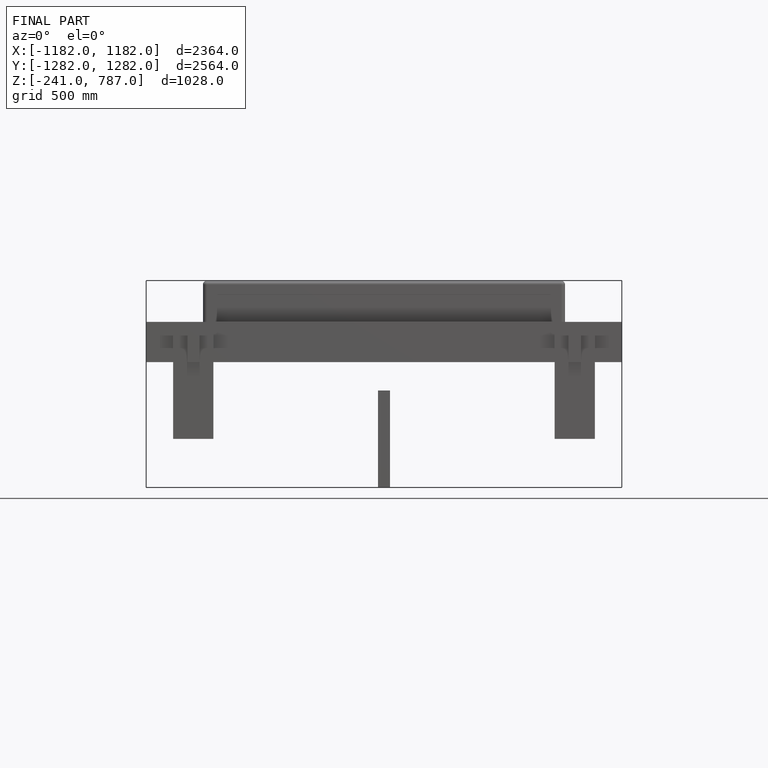
[diagram: finished part — front view with bounding-box wireframe]
